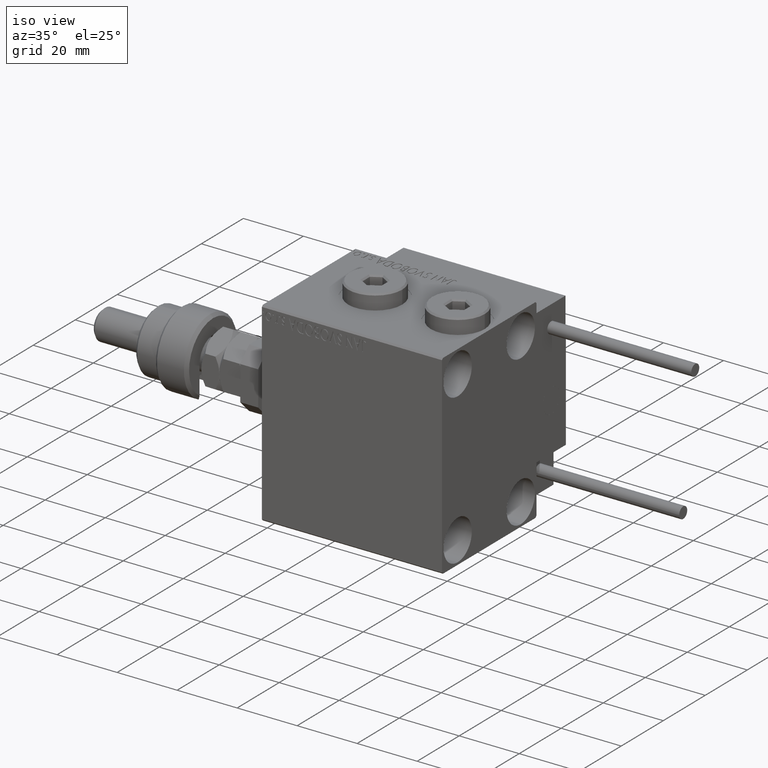
[diagram: clean part render]
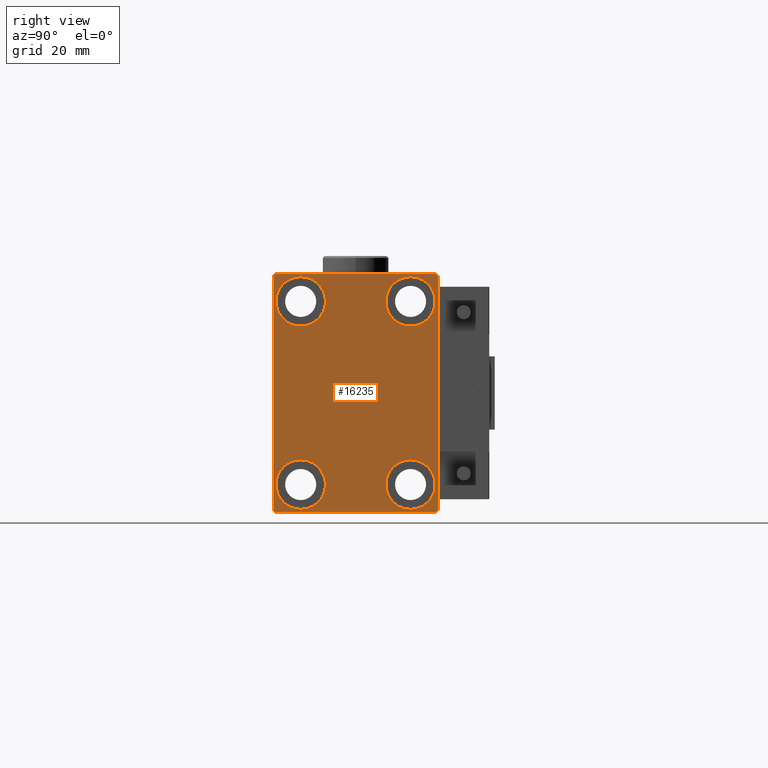
[diagram: tour spotlight — one face highlighted and labeled with its STEP entity id]
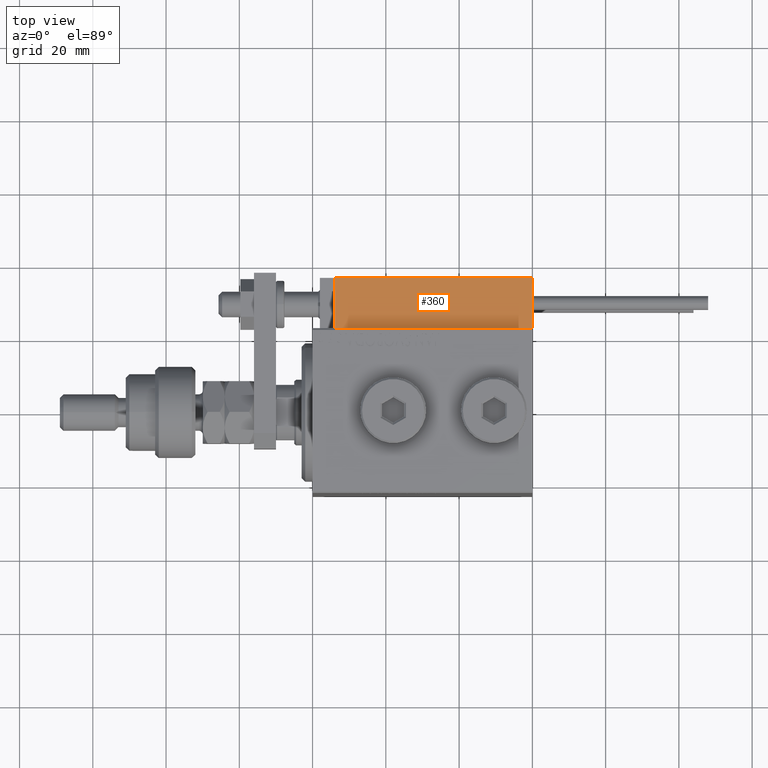
[diagram: tour spotlight — one face highlighted and labeled with its STEP entity id]
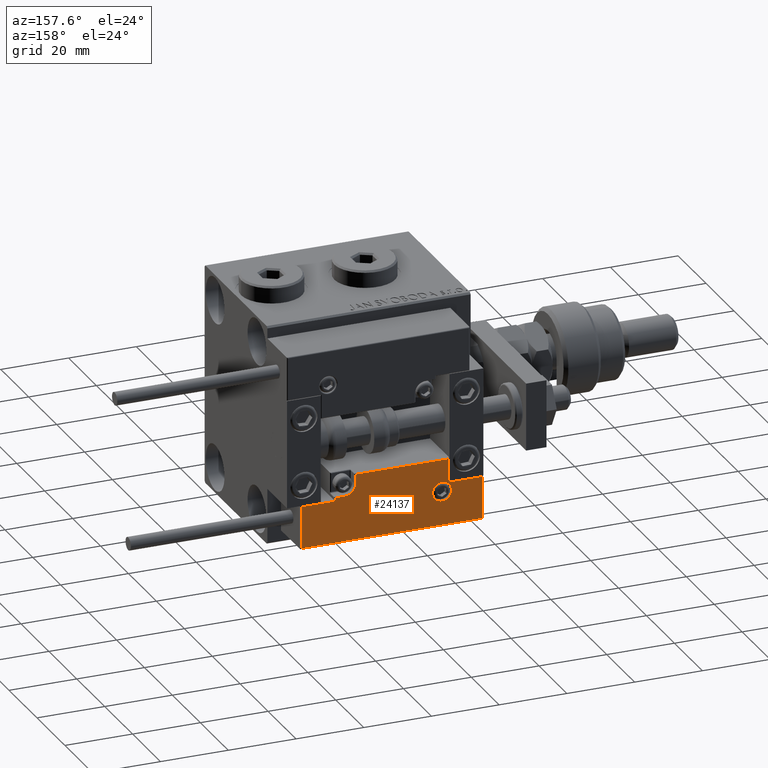
[diagram: tour spotlight — one face highlighted and labeled with its STEP entity id]
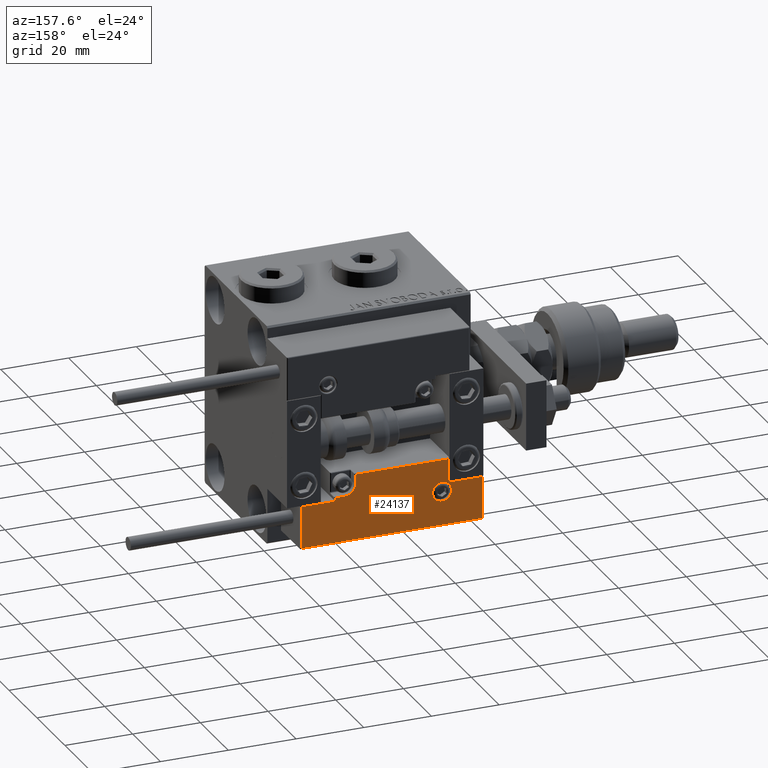
[diagram: tour spotlight — one face highlighted and labeled with its STEP entity id]
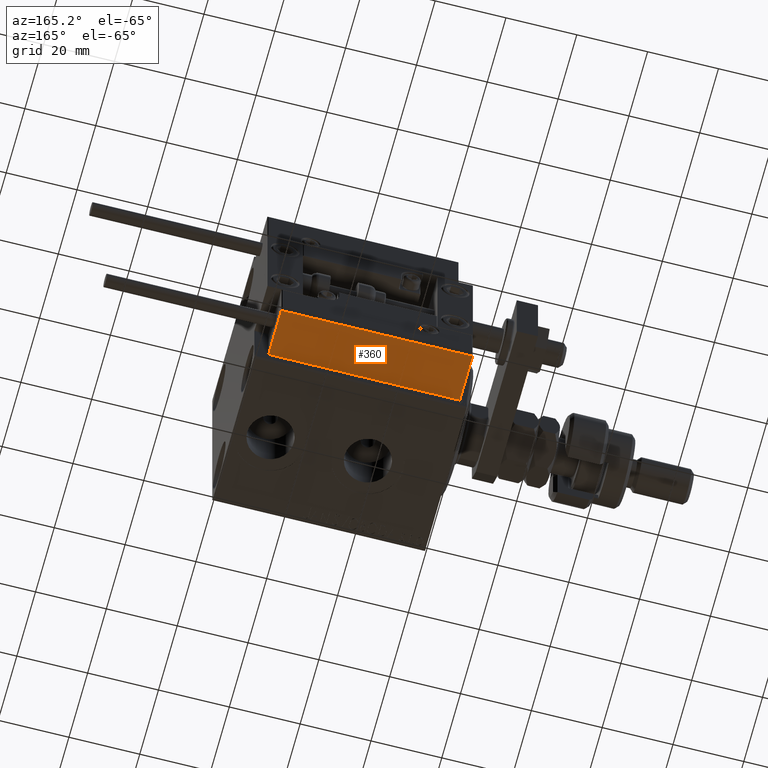
[diagram: tour spotlight — one face highlighted and labeled with its STEP entity id]
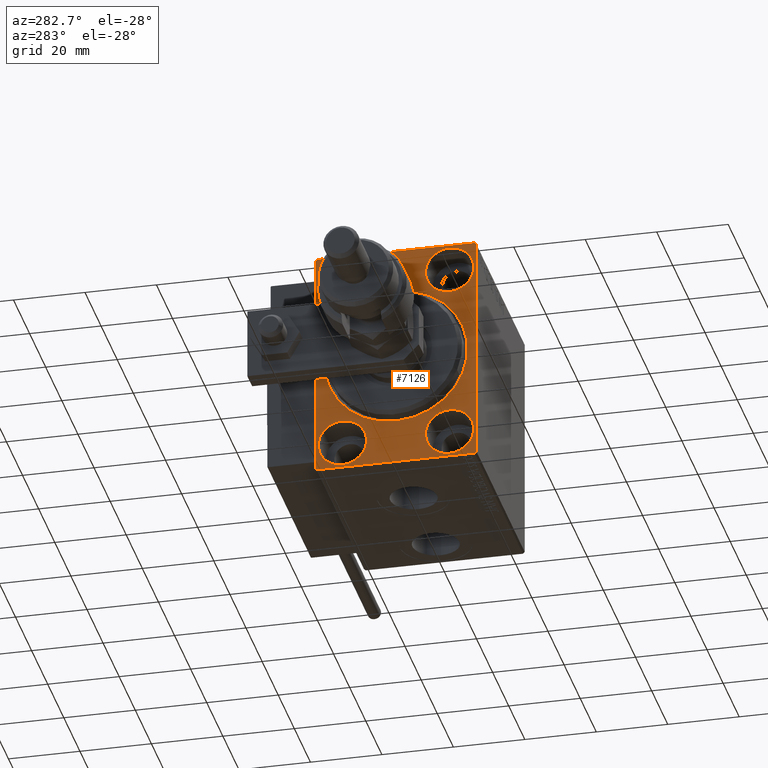
[diagram: tour spotlight — one face highlighted and labeled with its STEP entity id]
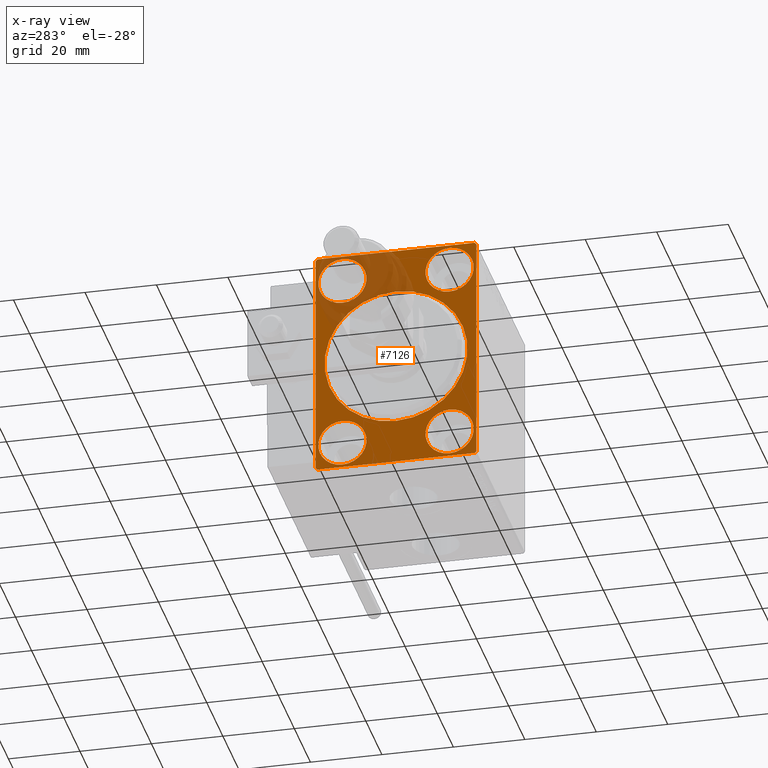
[diagram: x-ray of the same camera — body ghosted, this tour face saturated]
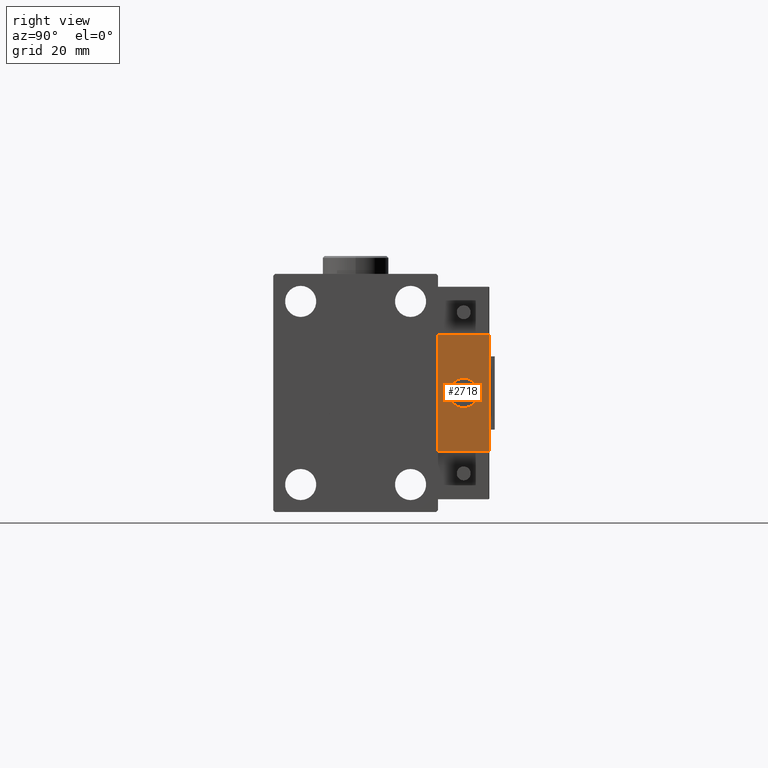
[diagram: tour spotlight — one face highlighted and labeled with its STEP entity id]
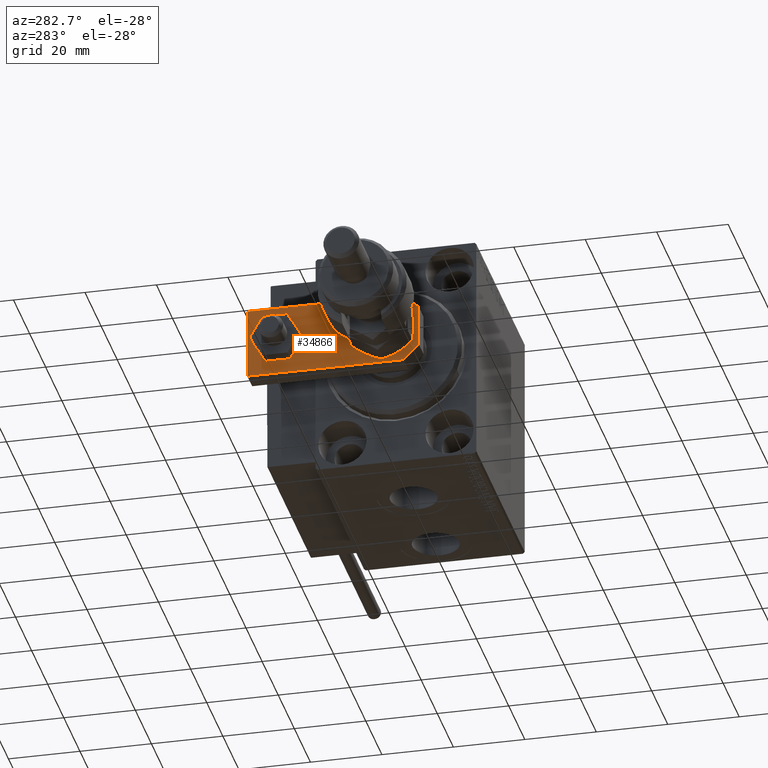
[diagram: tour spotlight — one face highlighted and labeled with its STEP entity id]
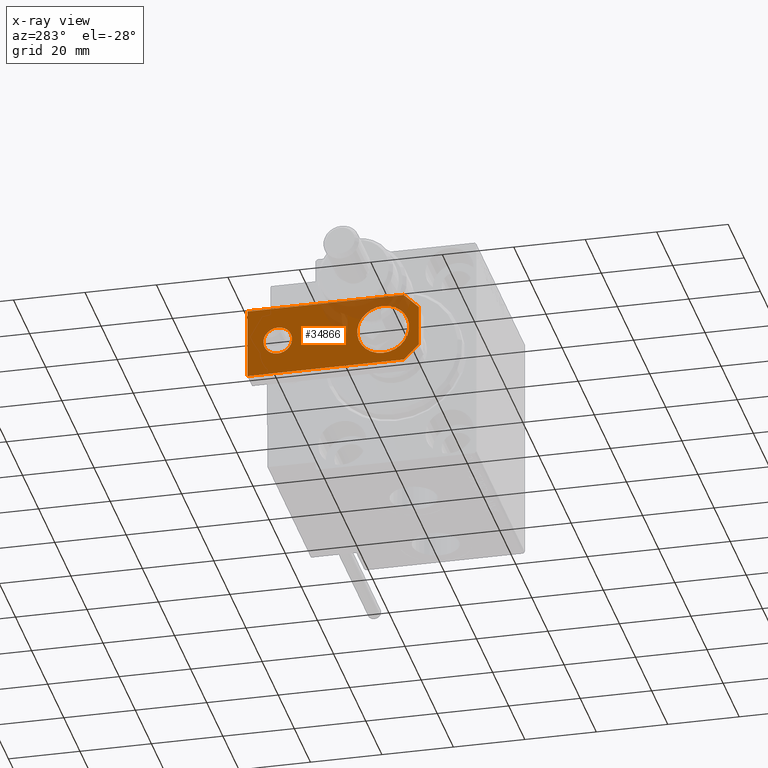
[diagram: x-ray of the same camera — body ghosted, this tour face saturated]
A machine part: a face-by-face anatomy tour. The part has 1421 B-rep faces; the first image is the clean iso view, then the 8 largest visible faces are spotlighted one at a time (largest first), each with its STEP entity span.

Face 1 — right view, entity #16235. In plain terms, the highlighted planar face has unit normal (1, 0, 0).
Definition (entity closure, byte-faithful):
#26 = DIRECTION ( 'NONE',  ( 0.000000000000000000, 0.000000000000000000, -1.000000000000000000 ) ) ;
#295 = EDGE_CURVE ( 'NONE', #29119, #45873, #20941, .T. ) ;
#684 = ORIENTED_EDGE ( 'NONE', *, *, #16793, .T. ) ;
#990 = VERTEX_POINT ( 'NONE', #53723 ) ;
#1831 = CARTESIAN_POINT ( 'NONE',  ( 60.00000000000000000, -22.50000000000000711, -32.00000000000000711 ) ) ;
#1866 = DIRECTION ( 'NONE',  ( -0.000000000000000000, 0.7071067811865376918, 0.7071067811865574537 ) ) ;
#1937 = EDGE_CURVE ( 'NONE', #3067, #21109, #43945, .T. ) ;
#2407 = CARTESIAN_POINT ( 'NONE',  ( 60.00000000000000000, -22.50000000000000711, -32.50000000000000711 ) ) ;
#2681 = CARTESIAN_POINT ( 'NONE',  ( 60.00000000000000000, -14.99999999999999645, 31.75000000000000000 ) ) ;
#3067 = VERTEX_POINT ( 'NONE', #42255 ) ;
#3173 = VERTEX_POINT ( 'NONE', #1831 ) ;
#3904 = CARTESIAN_POINT ( 'NONE',  ( 60.00000000000000000, 22.49999999999999289, 32.50000000000000000 ) ) ;
#4362 = ORIENTED_EDGE ( 'NONE', *, *, #14440, .T. ) ;
#5402 = DIRECTION ( 'NONE',  ( 0.000000000000000000, 0.000000000000000000, 1.000000000000000000 ) ) ;
#5993 = LINE ( 'NONE', #52433, #12314 ) ;
#6816 = EDGE_LOOP ( 'NONE', ( #50089, #40949, #41633, #4362, #11360, #30584, #31423, #20229 ) ) ;
#7571 = CARTESIAN_POINT ( 'NONE',  ( 60.00000000000000000, 15.00000000000000355, 31.75000000000000000 ) ) ;
#8039 = LINE ( 'NONE', #3904, #14961 ) ;
#8164 = VERTEX_POINT ( 'NONE', #38797 ) ;
#8286 = CARTESIAN_POINT ( 'NONE',  ( 60.00000000000000000, 21.99999999999999289, 32.50000000000000000 ) ) ;
#8685 = EDGE_LOOP ( 'NONE', ( #15532, #33483 ) ) ;
#8866 = EDGE_CURVE ( 'NONE', #16313, #42324, #20745, .T. ) ;
#9336 = FACE_BOUND ( 'NONE', #23962, .T. ) ;
#9538 = DIRECTION ( 'NONE',  ( -1.000000000000000000, -0.000000000000000000, -0.000000000000000000 ) ) ;
#10670 = CARTESIAN_POINT ( 'NONE',  ( 60.00000000000000000, -22.50000000000000711, 32.49999999999999289 ) ) ;
#11360 = ORIENTED_EDGE ( 'NONE', *, *, #44717, .T. ) ;
#11372 = VECTOR ( 'NONE', #35965, 1000.000000000000000 ) ;
#11888 = VERTEX_POINT ( 'NONE', #21552 ) ;
#12314 = VECTOR ( 'NONE', #1866, 999.9999999999998863 ) ;
#13186 = PLANE ( 'NONE',  #13992 ) ;
#13992 = AXIS2_PLACEMENT_3D ( 'NONE', #46481, #38468, #26 ) ;
#14440 = EDGE_CURVE ( 'NONE', #3173, #33764, #17332, .T. ) ;
#14699 = DIRECTION ( 'NONE',  ( -1.000000000000000000, -0.000000000000000000, -0.000000000000000000 ) ) ;
#14759 = CIRCLE ( 'NONE', #54293, 6.749999999999999112 ) ;
#14781 = LINE ( 'NONE', #10670, #44193 ) ;
#14961 = VECTOR ( 'NONE', #21211, 1000.000000000000000 ) ;
#15026 = ORIENTED_EDGE ( 'NONE', *, *, #1937, .T. ) ;
#15357 = LINE ( 'NONE', #19213, #11372 ) ;
#15532 = ORIENTED_EDGE ( 'NONE', *, *, #17025, .T. ) ;
#15978 = ORIENTED_EDGE ( 'NONE', *, *, #46107, .T. ) ;
#16235 = ADVANCED_FACE ( 'NONE', ( #51127, #47022, #9336, #37648, #29680 ), #13186, .T. ) ;
#16313 = VERTEX_POINT ( 'NONE', #17852 ) ;
#16543 = CIRCLE ( 'NONE', #34963, 6.749999999999999112 ) ;
#16715 = DIRECTION ( 'NONE',  ( 0.000000000000000000, 0.000000000000000000, 1.000000000000000000 ) ) ;
#16793 = EDGE_CURVE ( 'NONE', #50260, #28849, #14759, .T. ) ;
#16894 = AXIS2_PLACEMENT_3D ( 'NONE', #27363, #14699, #5402 ) ;
#16900 = EDGE_LOOP ( 'NONE', ( #684, #15978 ) ) ;
#16970 = DIRECTION ( 'NONE',  ( 0.000000000000000000, 0.000000000000000000, 1.000000000000000000 ) ) ;
#17025 = EDGE_CURVE ( 'NONE', #42324, #16313, #16543, .T. ) ;
#17047 = AXIS2_PLACEMENT_3D ( 'NONE', #28661, #19594, #49024 ) ;
#17332 = LINE ( 'NONE', #29972, #38478 ) ;
#17852 = CARTESIAN_POINT ( 'NONE',  ( 60.00000000000000000, 14.99999999999999645, -18.25000000000000355 ) ) ;
#19033 = DIRECTION ( 'NONE',  ( 0.000000000000000000, 0.000000000000000000, 1.000000000000000000 ) ) ;
#19213 = CARTESIAN_POINT ( 'NONE',  ( 60.00000000000000000, 22.50000000000000000, -32.50000000000000711 ) ) ;
#19594 = DIRECTION ( 'NONE',  ( -1.000000000000000000, -0.000000000000000000, -0.000000000000000000 ) ) ;
#20229 = ORIENTED_EDGE ( 'NONE', *, *, #24370, .T. ) ;
#20415 = CIRCLE ( 'NONE', #29215, 6.749999999999999112 ) ;
#20745 = CIRCLE ( 'NONE', #26027, 6.749999999999999112 ) ;
#20941 = CIRCLE ( 'NONE', #48190, 6.749999999999999112 ) ;
#21109 = VERTEX_POINT ( 'NONE', #2681 ) ;
#21211 = DIRECTION ( 'NONE',  ( 0.000000000000000000, -1.000000000000000000, -1.541976423090495387E-16 ) ) ;
#21397 = DIRECTION ( 'NONE',  ( 0.000000000000000000, 0.000000000000000000, 1.000000000000000000 ) ) ;
#21552 = CARTESIAN_POINT ( 'NONE',  ( 60.00000000000000000, 21.99999999999998579, -32.50000000000000711 ) ) ;
#21989 = EDGE_LOOP ( 'NONE', ( #15026, #30081 ) ) ;
#22180 = DIRECTION ( 'NONE',  ( 0.000000000000000000, 0.000000000000000000, 1.000000000000000000 ) ) ;
#23851 = DIRECTION ( 'NONE',  ( 0.000000000000000000, 1.000000000000000000, 0.000000000000000000 ) ) ;
#23962 = EDGE_LOOP ( 'NONE', ( #27906, #25077 ) ) ;
#24370 = EDGE_CURVE ( 'NONE', #8164, #39011, #52545, .T. ) ;
#25077 = ORIENTED_EDGE ( 'NONE', *, *, #25942, .T. ) ;
#25942 = EDGE_CURVE ( 'NONE', #45873, #29119, #36173, .T. ) ;
#26027 = AXIS2_PLACEMENT_3D ( 'NONE', #49998, #29087, #16715 ) ;
#26072 = DIRECTION ( 'NONE',  ( -1.000000000000000000, -0.000000000000000000, -0.000000000000000000 ) ) ;
#26624 = CARTESIAN_POINT ( 'NONE',  ( 60.00000000000000000, -27.25000000000000000, 27.25000000000000000 ) ) ;
#27363 = CARTESIAN_POINT ( 'NONE',  ( 60.00000000000000000, 15.00000000000000355, 25.00000000000000000 ) ) ;
#27906 = ORIENTED_EDGE ( 'NONE', *, *, #295, .T. ) ;
#28340 = DIRECTION ( 'NONE',  ( -0.000000000000000000, -0.7071067811865425767, 0.7071067811865525687 ) ) ;
#28661 = CARTESIAN_POINT ( 'NONE',  ( 60.00000000000000000, -14.99999999999999645, 25.00000000000000000 ) ) ;
#28849 = VERTEX_POINT ( 'NONE', #39995 ) ;
#29087 = DIRECTION ( 'NONE',  ( -1.000000000000000000, -0.000000000000000000, -0.000000000000000000 ) ) ;
#29119 = VERTEX_POINT ( 'NONE', #38840 ) ;
#29215 = AXIS2_PLACEMENT_3D ( 'NONE', #48481, #31140, #19033 ) ;
#29554 = DIRECTION ( 'NONE',  ( -1.000000000000000000, -0.000000000000000000, -0.000000000000000000 ) ) ;
#29680 = FACE_OUTER_BOUND ( 'NONE', #6816, .T. ) ;
#29972 = CARTESIAN_POINT ( 'NONE',  ( 60.00000000000000000, -27.25000000000032330, -27.24999999999957012 ) ) ;
#30081 = ORIENTED_EDGE ( 'NONE', *, *, #53337, .T. ) ;
#30584 = ORIENTED_EDGE ( 'NONE', *, *, #40403, .T. ) ;
#31140 = DIRECTION ( 'NONE',  ( -1.000000000000000000, -0.000000000000000000, -0.000000000000000000 ) ) ;
#31423 = ORIENTED_EDGE ( 'NONE', *, *, #38455, .T. ) ;
#31564 = DIRECTION ( 'NONE',  ( 0.000000000000000000, 0.000000000000000000, -1.000000000000000000 ) ) ;
#32119 = CARTESIAN_POINT ( 'NONE',  ( 60.00000000000000000, 22.50000000000000000, -31.99999999999999289 ) ) ;
#33401 = CARTESIAN_POINT ( 'NONE',  ( 60.00000000000000000, 14.99999999999999645, -25.00000000000000000 ) ) ;
#33483 = ORIENTED_EDGE ( 'NONE', *, *, #8866, .T. ) ;
#33764 = VERTEX_POINT ( 'NONE', #42670 ) ;
#33993 = DIRECTION ( 'NONE',  ( -1.000000000000000000, -0.000000000000000000, -0.000000000000000000 ) ) ;
#34316 = VECTOR ( 'NONE', #47272, 1000.000000000000114 ) ;
#34963 = AXIS2_PLACEMENT_3D ( 'NONE', #33401, #29554, #50196 ) ;
#35751 = CARTESIAN_POINT ( 'NONE',  ( 60.00000000000000000, 27.25000000000014921, 27.24999999999976907 ) ) ;
#35965 = DIRECTION ( 'NONE',  ( 0.000000000000000000, -1.067522139062650425E-16, 1.000000000000000000 ) ) ;
#36173 = CIRCLE ( 'NONE', #16894, 6.749999999999999112 ) ;
#36445 = CARTESIAN_POINT ( 'NONE',  ( 60.00000000000000000, 14.99999999999999645, -31.75000000000000000 ) ) ;
#36469 = LINE ( 'NONE', #2407, #40590 ) ;
#37648 = FACE_BOUND ( 'NONE', #16900, .T. ) ;
#38455 = EDGE_CURVE ( 'NONE', #41927, #8164, #15357, .T. ) ;
#38468 = DIRECTION ( 'NONE',  ( 1.000000000000000000, 0.000000000000000000, 0.000000000000000000 ) ) ;
#38478 = VECTOR ( 'NONE', #46766, 1000.000000000000000 ) ;
#38797 = CARTESIAN_POINT ( 'NONE',  ( 60.00000000000000000, 22.49999999999999289, 31.99999999999999289 ) ) ;
#38840 = CARTESIAN_POINT ( 'NONE',  ( 60.00000000000000000, 15.00000000000000355, 18.25000000000000355 ) ) ;
#39011 = VERTEX_POINT ( 'NONE', #8286 ) ;
#39524 = LINE ( 'NONE', #26624, #34316 ) ;
#39995 = CARTESIAN_POINT ( 'NONE',  ( 60.00000000000000000, -15.00000000000000355, -18.25000000000000355 ) ) ;
#40403 = EDGE_CURVE ( 'NONE', #11888, #41927, #5993, .T. ) ;
#40590 = VECTOR ( 'NONE', #23851, 1000.000000000000000 ) ;
#40742 = CIRCLE ( 'NONE', #17047, 6.749999999999999112 ) ;
#40949 = ORIENTED_EDGE ( 'NONE', *, *, #41533, .T. ) ;
#41087 = EDGE_CURVE ( 'NONE', #39011, #53689, #8039, .T. ) ;
#41166 = CARTESIAN_POINT ( 'NONE',  ( 60.00000000000000000, -21.99999999999999289, 32.49999999999999289 ) ) ;
#41533 = EDGE_CURVE ( 'NONE', #53689, #990, #39524, .T. ) ;
#41633 = ORIENTED_EDGE ( 'NONE', *, *, #50386, .T. ) ;
#41927 = VERTEX_POINT ( 'NONE', #32119 ) ;
#42249 = CARTESIAN_POINT ( 'NONE',  ( 60.00000000000000000, -14.99999999999999645, 25.00000000000000000 ) ) ;
#42255 = CARTESIAN_POINT ( 'NONE',  ( 60.00000000000000000, -14.99999999999999645, 18.25000000000000355 ) ) ;
#42324 = VERTEX_POINT ( 'NONE', #36445 ) ;
#42670 = CARTESIAN_POINT ( 'NONE',  ( 60.00000000000000000, -22.00000000000002132, -32.50000000000000711 ) ) ;
#43137 = VECTOR ( 'NONE', #28340, 999.9999999999998863 ) ;
#43945 = CIRCLE ( 'NONE', #47515, 6.749999999999999112 ) ;
#44193 = VECTOR ( 'NONE', #31564, 1000.000000000000000 ) ;
#44717 = EDGE_CURVE ( 'NONE', #33764, #11888, #36469, .T. ) ;
#45873 = VERTEX_POINT ( 'NONE', #7571 ) ;
#46107 = EDGE_CURVE ( 'NONE', #28849, #50260, #20415, .T. ) ;
#46481 = CARTESIAN_POINT ( 'NONE',  ( 60.00000000000000000, 0.000000000000000000, 0.000000000000000000 ) ) ;
#46708 = CARTESIAN_POINT ( 'NONE',  ( 60.00000000000000000, 15.00000000000000355, 25.00000000000000000 ) ) ;
#46766 = DIRECTION ( 'NONE',  ( -0.000000000000000000, 0.7071067811865378028, -0.7071067811865573427 ) ) ;
#47022 = FACE_BOUND ( 'NONE', #21989, .T. ) ;
#47222 = CARTESIAN_POINT ( 'NONE',  ( 60.00000000000000000, -15.00000000000000355, -25.00000000000000000 ) ) ;
#47272 = DIRECTION ( 'NONE',  ( 0.000000000000000000, -0.7071067811865474617, -0.7071067811865474617 ) ) ;
#47515 = AXIS2_PLACEMENT_3D ( 'NONE', #42249, #33993, #16970 ) ;
#47552 = CARTESIAN_POINT ( 'NONE',  ( 60.00000000000000000, -15.00000000000000355, -31.75000000000000000 ) ) ;
#48190 = AXIS2_PLACEMENT_3D ( 'NONE', #46708, #26072, #21397 ) ;
#48481 = CARTESIAN_POINT ( 'NONE',  ( 60.00000000000000000, -15.00000000000000355, -25.00000000000000000 ) ) ;
#49024 = DIRECTION ( 'NONE',  ( 0.000000000000000000, 0.000000000000000000, 1.000000000000000000 ) ) ;
#49998 = CARTESIAN_POINT ( 'NONE',  ( 60.00000000000000000, 14.99999999999999645, -25.00000000000000000 ) ) ;
#50089 = ORIENTED_EDGE ( 'NONE', *, *, #41087, .T. ) ;
#50196 = DIRECTION ( 'NONE',  ( 0.000000000000000000, 0.000000000000000000, 1.000000000000000000 ) ) ;
#50260 = VERTEX_POINT ( 'NONE', #47552 ) ;
#50386 = EDGE_CURVE ( 'NONE', #990, #3173, #14781, .T. ) ;
#51127 = FACE_BOUND ( 'NONE', #8685, .T. ) ;
#52433 = CARTESIAN_POINT ( 'NONE',  ( 60.00000000000000000, 27.25000000000030553, -27.24999999999954881 ) ) ;
#52545 = LINE ( 'NONE', #35751, #43137 ) ;
#53337 = EDGE_CURVE ( 'NONE', #21109, #3067, #40742, .T. ) ;
#53689 = VERTEX_POINT ( 'NONE', #41166 ) ;
#53723 = CARTESIAN_POINT ( 'NONE',  ( 60.00000000000000000, -22.50000000000000711, 31.99999999999999289 ) ) ;
#54293 = AXIS2_PLACEMENT_3D ( 'NONE', #47222, #9538, #22180 ) ;

Face 2 — top view, entity #360. In plain terms, the highlighted planar face has unit normal (-0, -0, -1).
Definition (entity closure, byte-faithful):
#360 = ADVANCED_FACE ( 'NONE', ( #42003 ), #5172, .F. ) ;
#2602 = DIRECTION ( 'NONE',  ( 1.000000000000000000, -6.424901762877063495E-17, -0.000000000000000000 ) ) ;
#3023 = EDGE_CURVE ( 'NONE', #16167, #31279, #26047, .T. ) ;
#3566 = EDGE_LOOP ( 'NONE', ( #4620, #48056, #11229, #9707 ) ) ;
#4094 = DIRECTION ( 'NONE',  ( -6.424901762877063495E-17, -1.000000000000000000, 0.000000000000000000 ) ) ;
#4620 = ORIENTED_EDGE ( 'NONE', *, *, #13464, .F. ) ;
#5172 = PLANE ( 'NONE',  #29728 ) ;
#6096 = CARTESIAN_POINT ( 'NONE',  ( -26.99999999999993605, 20.00000000000002132, 14.00000000000000000 ) ) ;
#6355 = LINE ( 'NONE', #6096, #17420 ) ;
#7628 = VECTOR ( 'NONE', #50165, 1000.000000000000000 ) ;
#8764 = CARTESIAN_POINT ( 'NONE',  ( 27.00000000000006395, 20.00000000000001776, 14.00000000000000000 ) ) ;
#9707 = ORIENTED_EDGE ( 'NONE', *, *, #3023, .T. ) ;
#11015 = CARTESIAN_POINT ( 'NONE',  ( 27.00000000000006395, 20.00000000000001776, 0.000000000000000000 ) ) ;
#11229 = ORIENTED_EDGE ( 'NONE', *, *, #28292, .T. ) ;
#13464 = EDGE_CURVE ( 'NONE', #21680, #31279, #6355, .T. ) ;
#16167 = VERTEX_POINT ( 'NONE', #11015 ) ;
#16604 = LINE ( 'NONE', #33371, #7628 ) ;
#17420 = VECTOR ( 'NONE', #35735, 1000.000000000000000 ) ;
#21106 = DIRECTION ( 'NONE',  ( -1.000000000000000000, 6.424901762877062263E-17, 0.000000000000000000 ) ) ;
#21680 = VERTEX_POINT ( 'NONE', #48479 ) ;
#21944 = DIRECTION ( 'NONE',  ( 1.000000000000000000, -6.424901762877063495E-17, 0.000000000000000000 ) ) ;
#23541 = CARTESIAN_POINT ( 'NONE',  ( -26.99999999999993605, 20.00000000000002132, 0.000000000000000000 ) ) ;
#26047 = LINE ( 'NONE', #29893, #35525 ) ;
#26880 = VERTEX_POINT ( 'NONE', #41221 ) ;
#28292 = EDGE_CURVE ( 'NONE', #26880, #16167, #16604, .T. ) ;
#29728 = AXIS2_PLACEMENT_3D ( 'NONE', #8764, #4094, #21944 ) ;
#29893 = CARTESIAN_POINT ( 'NONE',  ( 27.00000000000006395, 20.00000000000001776, 0.000000000000000000 ) ) ;
#31279 = VERTEX_POINT ( 'NONE', #23541 ) ;
#33371 = CARTESIAN_POINT ( 'NONE',  ( 27.00000000000006395, 20.00000000000001776, 14.00000000000000000 ) ) ;
#33512 = EDGE_CURVE ( 'NONE', #21680, #26880, #43571, .T. ) ;
#35525 = VECTOR ( 'NONE', #21106, 1000.000000000000000 ) ;
#35735 = DIRECTION ( 'NONE',  ( -0.000000000000000000, -0.000000000000000000, -1.000000000000000000 ) ) ;
#37616 = VECTOR ( 'NONE', #2602, 1000.000000000000000 ) ;
#41221 = CARTESIAN_POINT ( 'NONE',  ( 27.00000000000006395, 20.00000000000001776, 13.70000000000000107 ) ) ;
#42003 = FACE_OUTER_BOUND ( 'NONE', #3566, .T. ) ;
#43571 = LINE ( 'NONE', #48261, #37616 ) ;
#48056 = ORIENTED_EDGE ( 'NONE', *, *, #33512, .T. ) ;
#48261 = CARTESIAN_POINT ( 'NONE',  ( 27.00000000000006395, 20.00000000000001776, 13.70000000000000107 ) ) ;
#48479 = CARTESIAN_POINT ( 'NONE',  ( -26.99999999999993605, 20.00000000000002132, 13.70000000000000107 ) ) ;
#50165 = DIRECTION ( 'NONE',  ( -0.000000000000000000, -0.000000000000000000, -1.000000000000000000 ) ) ;

Face 3 — auxiliary view, entity #24137. In plain terms, the highlighted planar face has unit normal (0, 1, -0).
Definition (entity closure, byte-faithful):
#729 = LINE ( 'NONE', #8702, #33527 ) ;
#790 = ORIENTED_EDGE ( 'NONE', *, *, #2112, .T. ) ;
#1526 = VECTOR ( 'NONE', #17889, 1000.000000000000000 ) ;
#1564 = CARTESIAN_POINT ( 'NONE',  ( -26.69999999999994600, 7.300000000000005151, 14.00000000000000000 ) ) ;
#1640 = VERTEX_POINT ( 'NONE', #43124 ) ;
#1679 = CIRCLE ( 'NONE', #8717, 3.299999999999997158 ) ;
#1802 = EDGE_CURVE ( 'NONE', #2119, #19817, #14250, .T. ) ;
#2112 = EDGE_CURVE ( 'NONE', #19817, #8191, #16356, .T. ) ;
#2119 = VERTEX_POINT ( 'NONE', #32296 ) ;
#3286 = CARTESIAN_POINT ( 'NONE',  ( -17.59999999999994813, 9.800000000000004263, 14.00000000000000000 ) ) ;
#3514 = LINE ( 'NONE', #20269, #49515 ) ;
#3712 = EDGE_CURVE ( 'NONE', #33407, #2119, #53353, .T. ) ;
#3784 = CARTESIAN_POINT ( 'NONE',  ( 16.69999999999999929, 7.300000000000009592, 14.00000000000000000 ) ) ;
#3830 = LINE ( 'NONE', #54378, #5924 ) ;
#4257 = ORIENTED_EDGE ( 'NONE', *, *, #23079, .T. ) ;
#4655 = CIRCLE ( 'NONE', #15194, 2.800000000000000266 ) ;
#5549 = CARTESIAN_POINT ( 'NONE',  ( 10.69999999999999929, 3.000000000000003109, 14.00000000000000000 ) ) ;
#5924 = VECTOR ( 'NONE', #53589, 1000.000000000000000 ) ;
#6757 = EDGE_CURVE ( 'NONE', #7112, #23624, #26869, .T. ) ;
#6829 = CARTESIAN_POINT ( 'NONE',  ( 11.00000000000000000, 0.3000000000000032085, 14.00000000000000000 ) ) ;
#7112 = VERTEX_POINT ( 'NONE', #17409 ) ;
#8191 = VERTEX_POINT ( 'NONE', #5549 ) ;
#8358 = DIRECTION ( 'NONE',  ( 1.000000000000000000, 0.000000000000000000, 0.000000000000000000 ) ) ;
#8570 = LINE ( 'NONE', #26413, #1526 ) ;
#8611 = CARTESIAN_POINT ( 'NONE',  ( 0.000000000000000000, 0.000000000000000000, 14.00000000000000000 ) ) ;
#8702 = CARTESIAN_POINT ( 'NONE',  ( 16.69999999999999929, 7.000000000000009770, 14.00000000000000000 ) ) ;
#8717 = AXIS2_PLACEMENT_3D ( 'NONE', #12206, #28970, #8358 ) ;
#8933 = CARTESIAN_POINT ( 'NONE',  ( -14.79999999999994920, 9.800000000000004263, 14.00000000000000000 ) ) ;
#9239 = DIRECTION ( 'NONE',  ( 9.912705577010318647E-16, 1.000000000000000000, 0.000000000000000000 ) ) ;
#9938 = ORIENTED_EDGE ( 'NONE', *, *, #30620, .T. ) ;
#10030 = CARTESIAN_POINT ( 'NONE',  ( 16.69999999999999929, 6.300000000000003375, 14.00000000000000000 ) ) ;
#11060 = EDGE_CURVE ( 'NONE', #48906, #1640, #8570, .T. ) ;
#11266 = EDGE_CURVE ( 'NONE', #23624, #33407, #3830, .T. ) ;
#11496 = VECTOR ( 'NONE', #35091, 1000.000000000000000 ) ;
#12188 = FACE_BOUND ( 'NONE', #23288, .T. ) ;
#12206 = CARTESIAN_POINT ( 'NONE',  ( 13.99999999999999822, 3.000000000000002665, 14.00000000000000000 ) ) ;
#12785 = VERTEX_POINT ( 'NONE', #21824 ) ;
#12992 = DIRECTION ( 'NONE',  ( -0.000000000000000000, 0.000000000000000000, 1.000000000000000000 ) ) ;
#13689 = CARTESIAN_POINT ( 'NONE',  ( -26.69999999999994600, 7.000000000000005329, 14.00000000000000000 ) ) ;
#13942 = CARTESIAN_POINT ( 'NONE',  ( 17.00000000000000000, 6.300000000000003375, 14.00000000000000000 ) ) ;
#14169 = CARTESIAN_POINT ( 'NONE',  ( 13.99999999999999822, 6.300000000000001599, 14.00000000000000000 ) ) ;
#14250 = LINE ( 'NONE', #6829, #45735 ) ;
#14501 = VECTOR ( 'NONE', #47520, 1000.000000000000000 ) ;
#14608 = ORIENTED_EDGE ( 'NONE', *, *, #46603, .T. ) ;
#14990 = AXIS2_PLACEMENT_3D ( 'NONE', #8933, #21306, #29278 ) ;
#15194 = AXIS2_PLACEMENT_3D ( 'NONE', #47275, #30744, #52722 ) ;
#15210 = EDGE_CURVE ( 'NONE', #8191, #21324, #1679, .T. ) ;
#16356 = LINE ( 'NONE', #20474, #21130 ) ;
#17030 = VECTOR ( 'NONE', #28613, 1000.000000000000000 ) ;
#17409 = CARTESIAN_POINT ( 'NONE',  ( -26.69999999999993534, 19.70000000000002061, 14.00000000000000000 ) ) ;
#17889 = DIRECTION ( 'NONE',  ( 1.000000000000000000, -1.734723475976796001E-16, 0.000000000000000000 ) ) ;
#19543 = DIRECTION ( 'NONE',  ( -1.000000000000000000, 6.424901762877063495E-17, -0.000000000000000000 ) ) ;
#19775 = CARTESIAN_POINT ( 'NONE',  ( 10.69999999999999929, 0.3000000000000032085, 14.00000000000000000 ) ) ;
#19817 = VERTEX_POINT ( 'NONE', #19775 ) ;
#20207 = DIRECTION ( 'NONE',  ( -0.000000000000000000, 1.000000000000000000, -0.000000000000000000 ) ) ;
#20269 = CARTESIAN_POINT ( 'NONE',  ( 26.70000000000006324, 20.00000000000001776, 14.00000000000000000 ) ) ;
#20474 = CARTESIAN_POINT ( 'NONE',  ( 10.69999999999999929, 3.000000000000003109, 14.00000000000000000 ) ) ;
#21130 = VECTOR ( 'NONE', #20207, 1000.000000000000000 ) ;
#21188 = CARTESIAN_POINT ( 'NONE',  ( 26.70000000000006324, 19.70000000000001705, 14.00000000000000000 ) ) ;
#21306 = DIRECTION ( 'NONE',  ( 0.000000000000000000, -0.000000000000000000, -1.000000000000000000 ) ) ;
#21324 = VERTEX_POINT ( 'NONE', #14169 ) ;
#21824 = CARTESIAN_POINT ( 'NONE',  ( -11.99999999999994849, 9.800000000000004263, 14.00000000000000000 ) ) ;
#22053 = EDGE_CURVE ( 'NONE', #21324, #32577, #51607, .T. ) ;
#22856 = LINE ( 'NONE', #40699, #50716 ) ;
#23079 = EDGE_CURVE ( 'NONE', #12785, #28415, #38716, .T. ) ;
#23288 = EDGE_LOOP ( 'NONE', ( #4257, #14608 ) ) ;
#23624 = VERTEX_POINT ( 'NONE', #1564 ) ;
#23837 = ORIENTED_EDGE ( 'NONE', *, *, #1802, .T. ) ;
#24137 = ADVANCED_FACE ( 'NONE', ( #12188, #46278 ), #45737, .T. ) ;
#25582 = EDGE_LOOP ( 'NONE', ( #51200, #23837, #790, #35531, #49043, #47329, #30314, #30357, #9938, #30026, #43275 ) ) ;
#26413 = CARTESIAN_POINT ( 'NONE',  ( 27.00000000000006395, 7.300000000000007816, 14.00000000000000000 ) ) ;
#26869 = LINE ( 'NONE', #13689, #14501 ) ;
#28415 = VERTEX_POINT ( 'NONE', #3286 ) ;
#28613 = DIRECTION ( 'NONE',  ( 0.000000000000000000, -1.000000000000000000, 0.000000000000000000 ) ) ;
#28970 = DIRECTION ( 'NONE',  ( 0.000000000000000000, -0.000000000000000000, -1.000000000000000000 ) ) ;
#29278 = DIRECTION ( 'NONE',  ( 1.000000000000000000, 0.000000000000000000, 0.000000000000000000 ) ) ;
#30026 = ORIENTED_EDGE ( 'NONE', *, *, #6757, .T. ) ;
#30314 = ORIENTED_EDGE ( 'NONE', *, *, #11060, .T. ) ;
#30357 = ORIENTED_EDGE ( 'NONE', *, *, #48864, .T. ) ;
#30620 = EDGE_CURVE ( 'NONE', #31794, #7112, #22856, .T. ) ;
#30744 = DIRECTION ( 'NONE',  ( 0.000000000000000000, -0.000000000000000000, -1.000000000000000000 ) ) ;
#31794 = VERTEX_POINT ( 'NONE', #21188 ) ;
#32296 = CARTESIAN_POINT ( 'NONE',  ( -16.69999999999999218, 0.3000000000000032085, 14.00000000000000000 ) ) ;
#32577 = VERTEX_POINT ( 'NONE', #10030 ) ;
#33407 = VERTEX_POINT ( 'NONE', #50768 ) ;
#33527 = VECTOR ( 'NONE', #9239, 1000.000000000000000 ) ;
#35091 = DIRECTION ( 'NONE',  ( 1.000000000000000000, 5.782411586589357639E-16, -0.000000000000000000 ) ) ;
#35531 = ORIENTED_EDGE ( 'NONE', *, *, #15210, .T. ) ;
#38716 = CIRCLE ( 'NONE', #14990, 2.800000000000000266 ) ;
#40346 = DIRECTION ( 'NONE',  ( 0.000000000000000000, 1.000000000000000000, -0.000000000000000000 ) ) ;
#40699 = CARTESIAN_POINT ( 'NONE',  ( -26.99999999999993605, 19.70000000000002061, 14.00000000000000000 ) ) ;
#43124 = CARTESIAN_POINT ( 'NONE',  ( 26.70000000000006324, 7.300000000000007816, 14.00000000000000000 ) ) ;
#43275 = ORIENTED_EDGE ( 'NONE', *, *, #11266, .T. ) ;
#43585 = EDGE_CURVE ( 'NONE', #32577, #48906, #729, .T. ) ;
#45380 = CARTESIAN_POINT ( 'NONE',  ( -16.69999999999999218, 3.252606517456513302E-15, 14.00000000000000000 ) ) ;
#45735 = VECTOR ( 'NONE', #52184, 1000.000000000000000 ) ;
#45737 = PLANE ( 'NONE',  #46710 ) ;
#46278 = FACE_OUTER_BOUND ( 'NONE', #25582, .T. ) ;
#46603 = EDGE_CURVE ( 'NONE', #28415, #12785, #4655, .T. ) ;
#46710 = AXIS2_PLACEMENT_3D ( 'NONE', #8611, #12992, #54246 ) ;
#47275 = CARTESIAN_POINT ( 'NONE',  ( -14.79999999999994920, 9.800000000000004263, 14.00000000000000000 ) ) ;
#47329 = ORIENTED_EDGE ( 'NONE', *, *, #43585, .T. ) ;
#47520 = DIRECTION ( 'NONE',  ( -8.006416042969869188E-16, -1.000000000000000000, 0.000000000000000000 ) ) ;
#48864 = EDGE_CURVE ( 'NONE', #1640, #31794, #3514, .T. ) ;
#48906 = VERTEX_POINT ( 'NONE', #3784 ) ;
#49043 = ORIENTED_EDGE ( 'NONE', *, *, #22053, .T. ) ;
#49515 = VECTOR ( 'NONE', #40346, 1000.000000000000000 ) ;
#50716 = VECTOR ( 'NONE', #19543, 1000.000000000000000 ) ;
#50768 = CARTESIAN_POINT ( 'NONE',  ( -16.69999999999999218, 7.300000000000003375, 14.00000000000000000 ) ) ;
#51200 = ORIENTED_EDGE ( 'NONE', *, *, #3712, .T. ) ;
#51607 = LINE ( 'NONE', #13942, #11496 ) ;
#52184 = DIRECTION ( 'NONE',  ( 1.000000000000000000, -0.000000000000000000, 0.000000000000000000 ) ) ;
#52722 = DIRECTION ( 'NONE',  ( 1.000000000000000000, 0.000000000000000000, 0.000000000000000000 ) ) ;
#53353 = LINE ( 'NONE', #45380, #17030 ) ;
#53589 = DIRECTION ( 'NONE',  ( 1.000000000000000000, -1.734723475976815230E-16, 0.000000000000000000 ) ) ;
#54246 = DIRECTION ( 'NONE',  ( 1.000000000000000000, 0.000000000000000000, 0.000000000000000000 ) ) ;
#54378 = CARTESIAN_POINT ( 'NONE',  ( -16.99999999999999289, 7.300000000000003375, 14.00000000000000000 ) ) ;

Face 4 — auxiliary view, entity #24137. In plain terms, the highlighted planar face has unit normal (-0, 1, -0).
Definition (entity closure, byte-faithful):
#729 = LINE ( 'NONE', #8702, #33527 ) ;
#790 = ORIENTED_EDGE ( 'NONE', *, *, #2112, .T. ) ;
#1526 = VECTOR ( 'NONE', #17889, 1000.000000000000000 ) ;
#1564 = CARTESIAN_POINT ( 'NONE',  ( -26.69999999999994600, 7.300000000000005151, 14.00000000000000000 ) ) ;
#1640 = VERTEX_POINT ( 'NONE', #43124 ) ;
#1679 = CIRCLE ( 'NONE', #8717, 3.299999999999997158 ) ;
#1802 = EDGE_CURVE ( 'NONE', #2119, #19817, #14250, .T. ) ;
#2112 = EDGE_CURVE ( 'NONE', #19817, #8191, #16356, .T. ) ;
#2119 = VERTEX_POINT ( 'NONE', #32296 ) ;
#3286 = CARTESIAN_POINT ( 'NONE',  ( -17.59999999999994813, 9.800000000000004263, 14.00000000000000000 ) ) ;
#3514 = LINE ( 'NONE', #20269, #49515 ) ;
#3712 = EDGE_CURVE ( 'NONE', #33407, #2119, #53353, .T. ) ;
#3784 = CARTESIAN_POINT ( 'NONE',  ( 16.69999999999999929, 7.300000000000009592, 14.00000000000000000 ) ) ;
#3830 = LINE ( 'NONE', #54378, #5924 ) ;
#4257 = ORIENTED_EDGE ( 'NONE', *, *, #23079, .T. ) ;
#4655 = CIRCLE ( 'NONE', #15194, 2.800000000000000266 ) ;
#5549 = CARTESIAN_POINT ( 'NONE',  ( 10.69999999999999929, 3.000000000000003109, 14.00000000000000000 ) ) ;
#5924 = VECTOR ( 'NONE', #53589, 1000.000000000000000 ) ;
#6757 = EDGE_CURVE ( 'NONE', #7112, #23624, #26869, .T. ) ;
#6829 = CARTESIAN_POINT ( 'NONE',  ( 11.00000000000000000, 0.3000000000000032085, 14.00000000000000000 ) ) ;
#7112 = VERTEX_POINT ( 'NONE', #17409 ) ;
#8191 = VERTEX_POINT ( 'NONE', #5549 ) ;
#8358 = DIRECTION ( 'NONE',  ( 1.000000000000000000, 0.000000000000000000, 0.000000000000000000 ) ) ;
#8570 = LINE ( 'NONE', #26413, #1526 ) ;
#8611 = CARTESIAN_POINT ( 'NONE',  ( 0.000000000000000000, 0.000000000000000000, 14.00000000000000000 ) ) ;
#8702 = CARTESIAN_POINT ( 'NONE',  ( 16.69999999999999929, 7.000000000000009770, 14.00000000000000000 ) ) ;
#8717 = AXIS2_PLACEMENT_3D ( 'NONE', #12206, #28970, #8358 ) ;
#8933 = CARTESIAN_POINT ( 'NONE',  ( -14.79999999999994920, 9.800000000000004263, 14.00000000000000000 ) ) ;
#9239 = DIRECTION ( 'NONE',  ( 9.912705577010318647E-16, 1.000000000000000000, 0.000000000000000000 ) ) ;
#9938 = ORIENTED_EDGE ( 'NONE', *, *, #30620, .T. ) ;
#10030 = CARTESIAN_POINT ( 'NONE',  ( 16.69999999999999929, 6.300000000000003375, 14.00000000000000000 ) ) ;
#11060 = EDGE_CURVE ( 'NONE', #48906, #1640, #8570, .T. ) ;
#11266 = EDGE_CURVE ( 'NONE', #23624, #33407, #3830, .T. ) ;
#11496 = VECTOR ( 'NONE', #35091, 1000.000000000000000 ) ;
#12188 = FACE_BOUND ( 'NONE', #23288, .T. ) ;
#12206 = CARTESIAN_POINT ( 'NONE',  ( 13.99999999999999822, 3.000000000000002665, 14.00000000000000000 ) ) ;
#12785 = VERTEX_POINT ( 'NONE', #21824 ) ;
#12992 = DIRECTION ( 'NONE',  ( -0.000000000000000000, 0.000000000000000000, 1.000000000000000000 ) ) ;
#13689 = CARTESIAN_POINT ( 'NONE',  ( -26.69999999999994600, 7.000000000000005329, 14.00000000000000000 ) ) ;
#13942 = CARTESIAN_POINT ( 'NONE',  ( 17.00000000000000000, 6.300000000000003375, 14.00000000000000000 ) ) ;
#14169 = CARTESIAN_POINT ( 'NONE',  ( 13.99999999999999822, 6.300000000000001599, 14.00000000000000000 ) ) ;
#14250 = LINE ( 'NONE', #6829, #45735 ) ;
#14501 = VECTOR ( 'NONE', #47520, 1000.000000000000000 ) ;
#14608 = ORIENTED_EDGE ( 'NONE', *, *, #46603, .T. ) ;
#14990 = AXIS2_PLACEMENT_3D ( 'NONE', #8933, #21306, #29278 ) ;
#15194 = AXIS2_PLACEMENT_3D ( 'NONE', #47275, #30744, #52722 ) ;
#15210 = EDGE_CURVE ( 'NONE', #8191, #21324, #1679, .T. ) ;
#16356 = LINE ( 'NONE', #20474, #21130 ) ;
#17030 = VECTOR ( 'NONE', #28613, 1000.000000000000000 ) ;
#17409 = CARTESIAN_POINT ( 'NONE',  ( -26.69999999999993534, 19.70000000000002061, 14.00000000000000000 ) ) ;
#17889 = DIRECTION ( 'NONE',  ( 1.000000000000000000, -1.734723475976796001E-16, 0.000000000000000000 ) ) ;
#19543 = DIRECTION ( 'NONE',  ( -1.000000000000000000, 6.424901762877063495E-17, -0.000000000000000000 ) ) ;
#19775 = CARTESIAN_POINT ( 'NONE',  ( 10.69999999999999929, 0.3000000000000032085, 14.00000000000000000 ) ) ;
#19817 = VERTEX_POINT ( 'NONE', #19775 ) ;
#20207 = DIRECTION ( 'NONE',  ( -0.000000000000000000, 1.000000000000000000, -0.000000000000000000 ) ) ;
#20269 = CARTESIAN_POINT ( 'NONE',  ( 26.70000000000006324, 20.00000000000001776, 14.00000000000000000 ) ) ;
#20474 = CARTESIAN_POINT ( 'NONE',  ( 10.69999999999999929, 3.000000000000003109, 14.00000000000000000 ) ) ;
#21130 = VECTOR ( 'NONE', #20207, 1000.000000000000000 ) ;
#21188 = CARTESIAN_POINT ( 'NONE',  ( 26.70000000000006324, 19.70000000000001705, 14.00000000000000000 ) ) ;
#21306 = DIRECTION ( 'NONE',  ( 0.000000000000000000, -0.000000000000000000, -1.000000000000000000 ) ) ;
#21324 = VERTEX_POINT ( 'NONE', #14169 ) ;
#21824 = CARTESIAN_POINT ( 'NONE',  ( -11.99999999999994849, 9.800000000000004263, 14.00000000000000000 ) ) ;
#22053 = EDGE_CURVE ( 'NONE', #21324, #32577, #51607, .T. ) ;
#22856 = LINE ( 'NONE', #40699, #50716 ) ;
#23079 = EDGE_CURVE ( 'NONE', #12785, #28415, #38716, .T. ) ;
#23288 = EDGE_LOOP ( 'NONE', ( #4257, #14608 ) ) ;
#23624 = VERTEX_POINT ( 'NONE', #1564 ) ;
#23837 = ORIENTED_EDGE ( 'NONE', *, *, #1802, .T. ) ;
#24137 = ADVANCED_FACE ( 'NONE', ( #12188, #46278 ), #45737, .T. ) ;
#25582 = EDGE_LOOP ( 'NONE', ( #51200, #23837, #790, #35531, #49043, #47329, #30314, #30357, #9938, #30026, #43275 ) ) ;
#26413 = CARTESIAN_POINT ( 'NONE',  ( 27.00000000000006395, 7.300000000000007816, 14.00000000000000000 ) ) ;
#26869 = LINE ( 'NONE', #13689, #14501 ) ;
#28415 = VERTEX_POINT ( 'NONE', #3286 ) ;
#28613 = DIRECTION ( 'NONE',  ( 0.000000000000000000, -1.000000000000000000, 0.000000000000000000 ) ) ;
#28970 = DIRECTION ( 'NONE',  ( 0.000000000000000000, -0.000000000000000000, -1.000000000000000000 ) ) ;
#29278 = DIRECTION ( 'NONE',  ( 1.000000000000000000, 0.000000000000000000, 0.000000000000000000 ) ) ;
#30026 = ORIENTED_EDGE ( 'NONE', *, *, #6757, .T. ) ;
#30314 = ORIENTED_EDGE ( 'NONE', *, *, #11060, .T. ) ;
#30357 = ORIENTED_EDGE ( 'NONE', *, *, #48864, .T. ) ;
#30620 = EDGE_CURVE ( 'NONE', #31794, #7112, #22856, .T. ) ;
#30744 = DIRECTION ( 'NONE',  ( 0.000000000000000000, -0.000000000000000000, -1.000000000000000000 ) ) ;
#31794 = VERTEX_POINT ( 'NONE', #21188 ) ;
#32296 = CARTESIAN_POINT ( 'NONE',  ( -16.69999999999999218, 0.3000000000000032085, 14.00000000000000000 ) ) ;
#32577 = VERTEX_POINT ( 'NONE', #10030 ) ;
#33407 = VERTEX_POINT ( 'NONE', #50768 ) ;
#33527 = VECTOR ( 'NONE', #9239, 1000.000000000000000 ) ;
#35091 = DIRECTION ( 'NONE',  ( 1.000000000000000000, 5.782411586589357639E-16, -0.000000000000000000 ) ) ;
#35531 = ORIENTED_EDGE ( 'NONE', *, *, #15210, .T. ) ;
#38716 = CIRCLE ( 'NONE', #14990, 2.800000000000000266 ) ;
#40346 = DIRECTION ( 'NONE',  ( 0.000000000000000000, 1.000000000000000000, -0.000000000000000000 ) ) ;
#40699 = CARTESIAN_POINT ( 'NONE',  ( -26.99999999999993605, 19.70000000000002061, 14.00000000000000000 ) ) ;
#43124 = CARTESIAN_POINT ( 'NONE',  ( 26.70000000000006324, 7.300000000000007816, 14.00000000000000000 ) ) ;
#43275 = ORIENTED_EDGE ( 'NONE', *, *, #11266, .T. ) ;
#43585 = EDGE_CURVE ( 'NONE', #32577, #48906, #729, .T. ) ;
#45380 = CARTESIAN_POINT ( 'NONE',  ( -16.69999999999999218, 3.252606517456513302E-15, 14.00000000000000000 ) ) ;
#45735 = VECTOR ( 'NONE', #52184, 1000.000000000000000 ) ;
#45737 = PLANE ( 'NONE',  #46710 ) ;
#46278 = FACE_OUTER_BOUND ( 'NONE', #25582, .T. ) ;
#46603 = EDGE_CURVE ( 'NONE', #28415, #12785, #4655, .T. ) ;
#46710 = AXIS2_PLACEMENT_3D ( 'NONE', #8611, #12992, #54246 ) ;
#47275 = CARTESIAN_POINT ( 'NONE',  ( -14.79999999999994920, 9.800000000000004263, 14.00000000000000000 ) ) ;
#47329 = ORIENTED_EDGE ( 'NONE', *, *, #43585, .T. ) ;
#47520 = DIRECTION ( 'NONE',  ( -8.006416042969869188E-16, -1.000000000000000000, 0.000000000000000000 ) ) ;
#48864 = EDGE_CURVE ( 'NONE', #1640, #31794, #3514, .T. ) ;
#48906 = VERTEX_POINT ( 'NONE', #3784 ) ;
#49043 = ORIENTED_EDGE ( 'NONE', *, *, #22053, .T. ) ;
#49515 = VECTOR ( 'NONE', #40346, 1000.000000000000000 ) ;
#50716 = VECTOR ( 'NONE', #19543, 1000.000000000000000 ) ;
#50768 = CARTESIAN_POINT ( 'NONE',  ( -16.69999999999999218, 7.300000000000003375, 14.00000000000000000 ) ) ;
#51200 = ORIENTED_EDGE ( 'NONE', *, *, #3712, .T. ) ;
#51607 = LINE ( 'NONE', #13942, #11496 ) ;
#52184 = DIRECTION ( 'NONE',  ( 1.000000000000000000, -0.000000000000000000, 0.000000000000000000 ) ) ;
#52722 = DIRECTION ( 'NONE',  ( 1.000000000000000000, 0.000000000000000000, 0.000000000000000000 ) ) ;
#53353 = LINE ( 'NONE', #45380, #17030 ) ;
#53589 = DIRECTION ( 'NONE',  ( 1.000000000000000000, -1.734723475976815230E-16, 0.000000000000000000 ) ) ;
#54246 = DIRECTION ( 'NONE',  ( 1.000000000000000000, 0.000000000000000000, 0.000000000000000000 ) ) ;
#54378 = CARTESIAN_POINT ( 'NONE',  ( -16.99999999999999289, 7.300000000000003375, 14.00000000000000000 ) ) ;

Face 5 — auxiliary view, entity #360. In plain terms, the highlighted planar face has unit normal (0, 0, 1).
Definition (entity closure, byte-faithful):
#360 = ADVANCED_FACE ( 'NONE', ( #42003 ), #5172, .F. ) ;
#2602 = DIRECTION ( 'NONE',  ( 1.000000000000000000, -6.424901762877063495E-17, -0.000000000000000000 ) ) ;
#3023 = EDGE_CURVE ( 'NONE', #16167, #31279, #26047, .T. ) ;
#3566 = EDGE_LOOP ( 'NONE', ( #4620, #48056, #11229, #9707 ) ) ;
#4094 = DIRECTION ( 'NONE',  ( -6.424901762877063495E-17, -1.000000000000000000, 0.000000000000000000 ) ) ;
#4620 = ORIENTED_EDGE ( 'NONE', *, *, #13464, .F. ) ;
#5172 = PLANE ( 'NONE',  #29728 ) ;
#6096 = CARTESIAN_POINT ( 'NONE',  ( -26.99999999999993605, 20.00000000000002132, 14.00000000000000000 ) ) ;
#6355 = LINE ( 'NONE', #6096, #17420 ) ;
#7628 = VECTOR ( 'NONE', #50165, 1000.000000000000000 ) ;
#8764 = CARTESIAN_POINT ( 'NONE',  ( 27.00000000000006395, 20.00000000000001776, 14.00000000000000000 ) ) ;
#9707 = ORIENTED_EDGE ( 'NONE', *, *, #3023, .T. ) ;
#11015 = CARTESIAN_POINT ( 'NONE',  ( 27.00000000000006395, 20.00000000000001776, 0.000000000000000000 ) ) ;
#11229 = ORIENTED_EDGE ( 'NONE', *, *, #28292, .T. ) ;
#13464 = EDGE_CURVE ( 'NONE', #21680, #31279, #6355, .T. ) ;
#16167 = VERTEX_POINT ( 'NONE', #11015 ) ;
#16604 = LINE ( 'NONE', #33371, #7628 ) ;
#17420 = VECTOR ( 'NONE', #35735, 1000.000000000000000 ) ;
#21106 = DIRECTION ( 'NONE',  ( -1.000000000000000000, 6.424901762877062263E-17, 0.000000000000000000 ) ) ;
#21680 = VERTEX_POINT ( 'NONE', #48479 ) ;
#21944 = DIRECTION ( 'NONE',  ( 1.000000000000000000, -6.424901762877063495E-17, 0.000000000000000000 ) ) ;
#23541 = CARTESIAN_POINT ( 'NONE',  ( -26.99999999999993605, 20.00000000000002132, 0.000000000000000000 ) ) ;
#26047 = LINE ( 'NONE', #29893, #35525 ) ;
#26880 = VERTEX_POINT ( 'NONE', #41221 ) ;
#28292 = EDGE_CURVE ( 'NONE', #26880, #16167, #16604, .T. ) ;
#29728 = AXIS2_PLACEMENT_3D ( 'NONE', #8764, #4094, #21944 ) ;
#29893 = CARTESIAN_POINT ( 'NONE',  ( 27.00000000000006395, 20.00000000000001776, 0.000000000000000000 ) ) ;
#31279 = VERTEX_POINT ( 'NONE', #23541 ) ;
#33371 = CARTESIAN_POINT ( 'NONE',  ( 27.00000000000006395, 20.00000000000001776, 14.00000000000000000 ) ) ;
#33512 = EDGE_CURVE ( 'NONE', #21680, #26880, #43571, .T. ) ;
#35525 = VECTOR ( 'NONE', #21106, 1000.000000000000000 ) ;
#35735 = DIRECTION ( 'NONE',  ( -0.000000000000000000, -0.000000000000000000, -1.000000000000000000 ) ) ;
#37616 = VECTOR ( 'NONE', #2602, 1000.000000000000000 ) ;
#41221 = CARTESIAN_POINT ( 'NONE',  ( 27.00000000000006395, 20.00000000000001776, 13.70000000000000107 ) ) ;
#42003 = FACE_OUTER_BOUND ( 'NONE', #3566, .T. ) ;
#43571 = LINE ( 'NONE', #48261, #37616 ) ;
#48056 = ORIENTED_EDGE ( 'NONE', *, *, #33512, .T. ) ;
#48261 = CARTESIAN_POINT ( 'NONE',  ( 27.00000000000006395, 20.00000000000001776, 13.70000000000000107 ) ) ;
#48479 = CARTESIAN_POINT ( 'NONE',  ( -26.99999999999993605, 20.00000000000002132, 13.70000000000000107 ) ) ;
#50165 = DIRECTION ( 'NONE',  ( -0.000000000000000000, -0.000000000000000000, -1.000000000000000000 ) ) ;

Face 6 — auxiliary view, entity #7126. An x-ray twin of the same camera follows (body ghosted, this face saturated) — the face is partly hidden behind the body. In plain terms, the highlighted planar face has unit normal (1, 0, 0).
Definition (entity closure, byte-faithful):
#1162 = ORIENTED_EDGE ( 'NONE', *, *, #22451, .F. ) ;
#1617 = EDGE_CURVE ( 'NONE', #26927, #36045, #42305, .T. ) ;
#1647 = DIRECTION ( 'NONE',  ( -1.000000000000000000, 0.000000000000000000, 0.000000000000000000 ) ) ;
#1735 = CARTESIAN_POINT ( 'NONE',  ( 0.000000000000000000, 14.99999999999999645, -25.00000000000000000 ) ) ;
#1977 = AXIS2_PLACEMENT_3D ( 'NONE', #35253, #39121, #13576 ) ;
#2128 = CARTESIAN_POINT ( 'NONE',  ( 0.000000000000000000, 22.50000000000000000, -31.99999999999999289 ) ) ;
#2806 = DIRECTION ( 'NONE',  ( 1.000000000000000000, 0.000000000000000000, 0.000000000000000000 ) ) ;
#3793 = VECTOR ( 'NONE', #4460, 1000.000000000000000 ) ;
#3852 = DIRECTION ( 'NONE',  ( 0.000000000000000000, 0.000000000000000000, 1.000000000000000000 ) ) ;
#3931 = ORIENTED_EDGE ( 'NONE', *, *, #6554, .F. ) ;
#4460 = DIRECTION ( 'NONE',  ( 0.000000000000000000, 0.000000000000000000, -1.000000000000000000 ) ) ;
#4944 = AXIS2_PLACEMENT_3D ( 'NONE', #11122, #27888, #28163 ) ;
#5511 = CARTESIAN_POINT ( 'NONE',  ( 0.000000000000000000, -14.99999999999999645, 25.00000000000000000 ) ) ;
#5680 = DIRECTION ( 'NONE',  ( 0.000000000000000000, 0.000000000000000000, 1.000000000000000000 ) ) ;
#5917 = EDGE_LOOP ( 'NONE', ( #27005, #28411 ) ) ;
#6057 = CARTESIAN_POINT ( 'NONE',  ( 0.000000000000000000, 22.49999999999999289, 32.50000000000000000 ) ) ;
#6554 = EDGE_CURVE ( 'NONE', #22917, #28408, #35556, .T. ) ;
#6583 = DIRECTION ( 'NONE',  ( 0.000000000000000000, 1.000000000000000000, 0.000000000000000000 ) ) ;
#6862 = DIRECTION ( 'NONE',  ( 0.000000000000000000, 0.000000000000000000, 1.000000000000000000 ) ) ;
#6963 = ORIENTED_EDGE ( 'NONE', *, *, #36615, .F. ) ;
#6984 = ORIENTED_EDGE ( 'NONE', *, *, #26600, .F. ) ;
#7126 = ADVANCED_FACE ( 'NONE', ( #11048, #23141, #47911, #27004, #40456, #18739 ), #18473, .F. ) ;
#7930 = CARTESIAN_POINT ( 'NONE',  ( 0.000000000000000000, -14.99999999999999645, 18.25000000000000355 ) ) ;
#8406 = AXIS2_PLACEMENT_3D ( 'NONE', #44307, #2806, #19013 ) ;
#8666 = ORIENTED_EDGE ( 'NONE', *, *, #19694, .F. ) ;
#8862 = CIRCLE ( 'NONE', #39570, 6.749999999999999112 ) ;
#9432 = DIRECTION ( 'NONE',  ( 0.000000000000000000, 0.000000000000000000, 1.000000000000000000 ) ) ;
#9692 = EDGE_CURVE ( 'NONE', #20286, #38981, #48917, .T. ) ;
#10257 = CIRCLE ( 'NONE', #24332, 19.99999999999998934 ) ;
#10344 = ORIENTED_EDGE ( 'NONE', *, *, #24627, .F. ) ;
#10372 = CARTESIAN_POINT ( 'NONE',  ( 0.000000000000000000, 14.99999999999999645, -18.25000000000000355 ) ) ;
#10443 = CARTESIAN_POINT ( 'NONE',  ( 0.000000000000000000, 14.99999999999999645, -31.75000000000000000 ) ) ;
#10665 = EDGE_CURVE ( 'NONE', #26622, #15197, #10257, .T. ) ;
#10693 = CARTESIAN_POINT ( 'NONE',  ( 0.000000000000000000, -22.50000000000000711, -32.50000000000000711 ) ) ;
#10760 = CARTESIAN_POINT ( 'NONE',  ( 0.000000000000000000, 14.99999999999999645, -25.00000000000000000 ) ) ;
#11048 = FACE_BOUND ( 'NONE', #5917, .T. ) ;
#11122 = CARTESIAN_POINT ( 'NONE',  ( 0.000000000000000000, 0.000000000000000000, 0.000000000000000000 ) ) ;
#11568 = AXIS2_PLACEMENT_3D ( 'NONE', #1735, #30330, #9432 ) ;
#12462 = CIRCLE ( 'NONE', #23007, 6.749999999999999112 ) ;
#12741 = CARTESIAN_POINT ( 'NONE',  ( 0.000000000000000000, 2.449293598294705330E-15, -19.99999999999998934 ) ) ;
#13047 = CIRCLE ( 'NONE', #43768, 6.749999999999999112 ) ;
#13418 = ORIENTED_EDGE ( 'NONE', *, *, #15614, .T. ) ;
#13552 = CARTESIAN_POINT ( 'NONE',  ( 0.000000000000000000, -15.00000000000000355, -18.25000000000000355 ) ) ;
#13576 = DIRECTION ( 'NONE',  ( 0.000000000000000000, 0.000000000000000000, 1.000000000000000000 ) ) ;
#14808 = LINE ( 'NONE', #10693, #52595 ) ;
#15197 = VERTEX_POINT ( 'NONE', #12741 ) ;
#15402 = AXIS2_PLACEMENT_3D ( 'NONE', #40389, #37345, #6862 ) ;
#15483 = CIRCLE ( 'NONE', #4944, 19.99999999999998934 ) ;
#15614 = EDGE_CURVE ( 'NONE', #26927, #29558, #39773, .T. ) ;
#15687 = VERTEX_POINT ( 'NONE', #40050 ) ;
#15885 = CARTESIAN_POINT ( 'NONE',  ( 0.000000000000000000, 21.99999999999999289, 32.50000000000000000 ) ) ;
#15906 = VERTEX_POINT ( 'NONE', #45174 ) ;
#16402 = CARTESIAN_POINT ( 'NONE',  ( 0.000000000000000000, -22.00000000000002132, -32.50000000000000711 ) ) ;
#16424 = EDGE_LOOP ( 'NONE', ( #1162, #6963 ) ) ;
#16438 = ORIENTED_EDGE ( 'NONE', *, *, #39237, .F. ) ;
#16694 = DIRECTION ( 'NONE',  ( -0.000000000000000000, 0.7071067811865425767, -0.7071067811865525687 ) ) ;
#16744 = CARTESIAN_POINT ( 'NONE',  ( 0.000000000000000000, 22.49999999999999289, 31.99999999999999289 ) ) ;
#17069 = VERTEX_POINT ( 'NONE', #42727 ) ;
#17369 = CARTESIAN_POINT ( 'NONE',  ( 0.000000000000000000, 0.000000000000000000, 19.99999999999998934 ) ) ;
#18391 = EDGE_CURVE ( 'NONE', #45502, #51546, #13047, .T. ) ;
#18405 = DIRECTION ( 'NONE',  ( 0.000000000000000000, 0.000000000000000000, 1.000000000000000000 ) ) ;
#18473 = PLANE ( 'NONE',  #8406 ) ;
#18695 = LINE ( 'NONE', #43990, #42389 ) ;
#18739 = FACE_OUTER_BOUND ( 'NONE', #31027, .T. ) ;
#18970 = DIRECTION ( 'NONE',  ( -0.000000000000000000, 0.7071067811865474617, 0.7071067811865474617 ) ) ;
#19013 = DIRECTION ( 'NONE',  ( 0.000000000000000000, 0.000000000000000000, -1.000000000000000000 ) ) ;
#19286 = DIRECTION ( 'NONE',  ( -1.000000000000000000, 0.000000000000000000, 0.000000000000000000 ) ) ;
#19433 = DIRECTION ( 'NONE',  ( 1.000000000000000000, 0.000000000000000000, 0.000000000000000000 ) ) ;
#19694 = EDGE_CURVE ( 'NONE', #27197, #17069, #47850, .T. ) ;
#19885 = ORIENTED_EDGE ( 'NONE', *, *, #43928, .F. ) ;
#20286 = VERTEX_POINT ( 'NONE', #16402 ) ;
#20517 = CARTESIAN_POINT ( 'NONE',  ( 0.000000000000000000, 0.000000000000000000, 0.000000000000000000 ) ) ;
#20691 = ORIENTED_EDGE ( 'NONE', *, *, #49374, .F. ) ;
#20817 = LINE ( 'NONE', #15885, #34650 ) ;
#21888 = VECTOR ( 'NONE', #30487, 1000.000000000000000 ) ;
#21931 = AXIS2_PLACEMENT_3D ( 'NONE', #5511, #26133, #22272 ) ;
#22099 = CARTESIAN_POINT ( 'NONE',  ( 0.000000000000000000, 21.99999999999999289, 32.50000000000000000 ) ) ;
#22272 = DIRECTION ( 'NONE',  ( 0.000000000000000000, 0.000000000000000000, 1.000000000000000000 ) ) ;
#22451 = EDGE_CURVE ( 'NONE', #32725, #45694, #8862, .T. ) ;
#22781 = VECTOR ( 'NONE', #30723, 999.9999999999998863 ) ;
#22917 = VERTEX_POINT ( 'NONE', #7930 ) ;
#23007 = AXIS2_PLACEMENT_3D ( 'NONE', #39287, #1647, #18405 ) ;
#23141 = FACE_BOUND ( 'NONE', #41993, .T. ) ;
#23617 = CARTESIAN_POINT ( 'NONE',  ( 0.000000000000000000, -22.00000000000002132, -32.50000000000000711 ) ) ;
#24138 = EDGE_LOOP ( 'NONE', ( #10344, #20691 ) ) ;
#24332 = AXIS2_PLACEMENT_3D ( 'NONE', #20517, #19433, #53792 ) ;
#24627 = EDGE_CURVE ( 'NONE', #15906, #46070, #12462, .T. ) ;
#24954 = CIRCLE ( 'NONE', #1977, 6.749999999999999112 ) ;
#25624 = CIRCLE ( 'NONE', #11568, 6.749999999999999112 ) ;
#26133 = DIRECTION ( 'NONE',  ( -1.000000000000000000, 0.000000000000000000, 0.000000000000000000 ) ) ;
#26600 = EDGE_CURVE ( 'NONE', #15687, #38981, #33584, .T. ) ;
#26622 = VERTEX_POINT ( 'NONE', #17369 ) ;
#26927 = VERTEX_POINT ( 'NONE', #40006 ) ;
#27004 = FACE_BOUND ( 'NONE', #24138, .T. ) ;
#27005 = ORIENTED_EDGE ( 'NONE', *, *, #10665, .T. ) ;
#27197 = VERTEX_POINT ( 'NONE', #22099 ) ;
#27562 = CARTESIAN_POINT ( 'NONE',  ( 0.000000000000000000, 15.00000000000000355, 18.25000000000000355 ) ) ;
#27888 = DIRECTION ( 'NONE',  ( 1.000000000000000000, 0.000000000000000000, 0.000000000000000000 ) ) ;
#28163 = DIRECTION ( 'NONE',  ( 0.000000000000000000, 0.000000000000000000, -1.000000000000000000 ) ) ;
#28181 = EDGE_CURVE ( 'NONE', #15197, #26622, #15483, .T. ) ;
#28408 = VERTEX_POINT ( 'NONE', #40945 ) ;
#28411 = ORIENTED_EDGE ( 'NONE', *, *, #28181, .T. ) ;
#28659 = CARTESIAN_POINT ( 'NONE',  ( 0.000000000000000000, -22.50000000000000711, 32.49999999999999289 ) ) ;
#29558 = VERTEX_POINT ( 'NONE', #33920 ) ;
#30330 = DIRECTION ( 'NONE',  ( -1.000000000000000000, 0.000000000000000000, 0.000000000000000000 ) ) ;
#30487 = DIRECTION ( 'NONE',  ( 0.000000000000000000, -1.067522139062650425E-16, 1.000000000000000000 ) ) ;
#30723 = DIRECTION ( 'NONE',  ( 0.000000000000000000, -0.7071067811865376918, -0.7071067811865574537 ) ) ;
#31027 = EDGE_LOOP ( 'NONE', ( #6984, #48308, #8666, #51933, #37529, #13418, #44579, #51536 ) ) ;
#32725 = VERTEX_POINT ( 'NONE', #13552 ) ;
#33584 = LINE ( 'NONE', #28659, #3793 ) ;
#33920 = CARTESIAN_POINT ( 'NONE',  ( 0.000000000000000000, 21.99999999999998579, -32.50000000000000711 ) ) ;
#33979 = CARTESIAN_POINT ( 'NONE',  ( 0.000000000000000000, -15.00000000000000355, -31.75000000000000000 ) ) ;
#34650 = VECTOR ( 'NONE', #16694, 999.9999999999998863 ) ;
#35253 = CARTESIAN_POINT ( 'NONE',  ( 0.000000000000000000, 15.00000000000000355, 25.00000000000000000 ) ) ;
#35556 = CIRCLE ( 'NONE', #15402, 6.749999999999999112 ) ;
#36045 = VERTEX_POINT ( 'NONE', #16744 ) ;
#36615 = EDGE_CURVE ( 'NONE', #45694, #32725, #39370, .T. ) ;
#37345 = DIRECTION ( 'NONE',  ( -1.000000000000000000, 0.000000000000000000, 0.000000000000000000 ) ) ;
#37529 = ORIENTED_EDGE ( 'NONE', *, *, #1617, .F. ) ;
#38422 = EDGE_CURVE ( 'NONE', #20286, #29558, #14808, .T. ) ;
#38981 = VERTEX_POINT ( 'NONE', #50352 ) ;
#39121 = DIRECTION ( 'NONE',  ( -1.000000000000000000, 0.000000000000000000, 0.000000000000000000 ) ) ;
#39237 = EDGE_CURVE ( 'NONE', #28408, #22917, #45633, .T. ) ;
#39287 = CARTESIAN_POINT ( 'NONE',  ( 0.000000000000000000, 15.00000000000000355, 25.00000000000000000 ) ) ;
#39370 = CIRCLE ( 'NONE', #44771, 6.749999999999999112 ) ;
#39570 = AXIS2_PLACEMENT_3D ( 'NONE', #41496, #44828, #3852 ) ;
#39773 = LINE ( 'NONE', #2128, #22781 ) ;
#40006 = CARTESIAN_POINT ( 'NONE',  ( 0.000000000000000000, 22.50000000000000000, -31.99999999999999289 ) ) ;
#40050 = CARTESIAN_POINT ( 'NONE',  ( 0.000000000000000000, -22.50000000000000711, 31.99999999999999289 ) ) ;
#40377 = DIRECTION ( 'NONE',  ( -0.000000000000000000, -0.7071067811865378028, 0.7071067811865573427 ) ) ;
#40389 = CARTESIAN_POINT ( 'NONE',  ( 0.000000000000000000, -14.99999999999999645, 25.00000000000000000 ) ) ;
#40456 = FACE_BOUND ( 'NONE', #16424, .T. ) ;
#40945 = CARTESIAN_POINT ( 'NONE',  ( 0.000000000000000000, -14.99999999999999645, 31.75000000000000000 ) ) ;
#40955 = VECTOR ( 'NONE', #40377, 1000.000000000000000 ) ;
#41496 = CARTESIAN_POINT ( 'NONE',  ( 0.000000000000000000, -15.00000000000000355, -25.00000000000000000 ) ) ;
#41993 = EDGE_LOOP ( 'NONE', ( #19885, #52005 ) ) ;
#42305 = LINE ( 'NONE', #51116, #21888 ) ;
#42389 = VECTOR ( 'NONE', #18970, 1000.000000000000114 ) ;
#42727 = CARTESIAN_POINT ( 'NONE',  ( 0.000000000000000000, -21.99999999999999289, 32.49999999999999289 ) ) ;
#43323 = DIRECTION ( 'NONE',  ( -1.000000000000000000, 0.000000000000000000, 0.000000000000000000 ) ) ;
#43768 = AXIS2_PLACEMENT_3D ( 'NONE', #10760, #19286, #52821 ) ;
#43928 = EDGE_CURVE ( 'NONE', #51546, #45502, #25624, .T. ) ;
#43990 = CARTESIAN_POINT ( 'NONE',  ( 0.000000000000000000, -22.50000000000000711, 31.99999999999999289 ) ) ;
#44307 = CARTESIAN_POINT ( 'NONE',  ( 0.000000000000000000, 0.000000000000000000, 0.000000000000000000 ) ) ;
#44579 = ORIENTED_EDGE ( 'NONE', *, *, #38422, .F. ) ;
#44771 = AXIS2_PLACEMENT_3D ( 'NONE', #47485, #43323, #5680 ) ;
#44828 = DIRECTION ( 'NONE',  ( -1.000000000000000000, 0.000000000000000000, 0.000000000000000000 ) ) ;
#45174 = CARTESIAN_POINT ( 'NONE',  ( 0.000000000000000000, 15.00000000000000355, 31.75000000000000000 ) ) ;
#45502 = VERTEX_POINT ( 'NONE', #10443 ) ;
#45631 = VECTOR ( 'NONE', #47584, 1000.000000000000000 ) ;
#45633 = CIRCLE ( 'NONE', #21931, 6.749999999999999112 ) ;
#45694 = VERTEX_POINT ( 'NONE', #33979 ) ;
#46070 = VERTEX_POINT ( 'NONE', #27562 ) ;
#46435 = EDGE_CURVE ( 'NONE', #15687, #17069, #18695, .T. ) ;
#47485 = CARTESIAN_POINT ( 'NONE',  ( 0.000000000000000000, -15.00000000000000355, -25.00000000000000000 ) ) ;
#47584 = DIRECTION ( 'NONE',  ( 0.000000000000000000, -1.000000000000000000, -1.541976423090495387E-16 ) ) ;
#47850 = LINE ( 'NONE', #6057, #45631 ) ;
#47911 = FACE_BOUND ( 'NONE', #51785, .T. ) ;
#48308 = ORIENTED_EDGE ( 'NONE', *, *, #46435, .T. ) ;
#48917 = LINE ( 'NONE', #23617, #40955 ) ;
#49374 = EDGE_CURVE ( 'NONE', #46070, #15906, #24954, .T. ) ;
#50352 = CARTESIAN_POINT ( 'NONE',  ( 0.000000000000000000, -22.50000000000000711, -32.00000000000000711 ) ) ;
#51116 = CARTESIAN_POINT ( 'NONE',  ( 0.000000000000000000, 22.50000000000000000, -32.50000000000000711 ) ) ;
#51536 = ORIENTED_EDGE ( 'NONE', *, *, #9692, .T. ) ;
#51546 = VERTEX_POINT ( 'NONE', #10372 ) ;
#51785 = EDGE_LOOP ( 'NONE', ( #16438, #3931 ) ) ;
#51933 = ORIENTED_EDGE ( 'NONE', *, *, #53799, .T. ) ;
#52005 = ORIENTED_EDGE ( 'NONE', *, *, #18391, .F. ) ;
#52595 = VECTOR ( 'NONE', #6583, 1000.000000000000000 ) ;
#52821 = DIRECTION ( 'NONE',  ( 0.000000000000000000, 0.000000000000000000, 1.000000000000000000 ) ) ;
#53792 = DIRECTION ( 'NONE',  ( 0.000000000000000000, 0.000000000000000000, -1.000000000000000000 ) ) ;
#53799 = EDGE_CURVE ( 'NONE', #27197, #36045, #20817, .T. ) ;

Face 7 — right view, entity #2718. In plain terms, the highlighted planar face has unit normal (-1, 0, 0).
Definition (entity closure, byte-faithful):
#290 = CARTESIAN_POINT ( 'NONE',  ( 10.00000000000000000, 0.000000000000000000, 0.000000000000000000 ) ) ;
#391 = DIRECTION ( 'NONE',  ( 0.000000000000000000, 0.000000000000000000, 1.000000000000000000 ) ) ;
#400 = DIRECTION ( 'NONE',  ( 0.000000000000000000, 0.000000000000000000, 1.000000000000000000 ) ) ;
#932 = DIRECTION ( 'NONE',  ( -1.000000000000000000, 0.000000000000000000, 0.000000000000000000 ) ) ;
#1006 = ORIENTED_EDGE ( 'NONE', *, *, #42364, .T. ) ;
#2718 = ADVANCED_FACE ( 'NONE', ( #13993, #21164 ), #30757, .F. ) ;
#3033 = VECTOR ( 'NONE', #35931, 1000.000000000000000 ) ;
#3389 = EDGE_LOOP ( 'NONE', ( #24840, #11232, #37393, #1006 ) ) ;
#3779 = VERTEX_POINT ( 'NONE', #40436 ) ;
#4469 = VECTOR ( 'NONE', #35089, 1000.000000000000000 ) ;
#7610 = LINE ( 'NONE', #48581, #19447 ) ;
#10184 = ORIENTED_EDGE ( 'NONE', *, *, #32650, .T. ) ;
#11232 = ORIENTED_EDGE ( 'NONE', *, *, #53574, .F. ) ;
#12914 = DIRECTION ( 'NONE',  ( -1.000000000000000000, 0.000000000000000000, -0.000000000000000000 ) ) ;
#13993 = FACE_BOUND ( 'NONE', #49639, .T. ) ;
#18074 = CARTESIAN_POINT ( 'NONE',  ( 10.00000000000000000, 7.000000000000000000, 15.99999999999999289 ) ) ;
#19243 = CARTESIAN_POINT ( 'NONE',  ( 10.00000000000000000, -7.000000000000000000, 15.99999999999999289 ) ) ;
#19447 = VECTOR ( 'NONE', #45534, 1000.000000000000000 ) ;
#20115 = VECTOR ( 'NONE', #42999, 1000.000000000000000 ) ;
#20345 = CARTESIAN_POINT ( 'NONE',  ( 10.00000000000000000, 0.000000000000000000, 4.000000000000000000 ) ) ;
#21164 = FACE_OUTER_BOUND ( 'NONE', #3389, .T. ) ;
#21803 = CARTESIAN_POINT ( 'NONE',  ( 10.00000000000000000, 0.000000000000000000, 0.000000000000000000 ) ) ;
#22116 = LINE ( 'NONE', #30897, #20115 ) ;
#24840 = ORIENTED_EDGE ( 'NONE', *, *, #37710, .T. ) ;
#29427 = AXIS2_PLACEMENT_3D ( 'NONE', #290, #12914, #50596 ) ;
#30721 = VERTEX_POINT ( 'NONE', #20345 ) ;
#30757 = PLANE ( 'NONE',  #29427 ) ;
#30897 = CARTESIAN_POINT ( 'NONE',  ( 10.00000000000000000, -7.000000000000000000, 15.99999999999999289 ) ) ;
#31444 = AXIS2_PLACEMENT_3D ( 'NONE', #21803, #38298, #391 ) ;
#32650 = EDGE_CURVE ( 'NONE', #30721, #47953, #45516, .T. ) ;
#33884 = VERTEX_POINT ( 'NONE', #52279 ) ;
#34321 = CARTESIAN_POINT ( 'NONE',  ( 10.00000000000000000, 4.898587196589412829E-16, -4.000000000000000000 ) ) ;
#35089 = DIRECTION ( 'NONE',  ( 0.000000000000000000, 0.000000000000000000, -1.000000000000000000 ) ) ;
#35663 = CARTESIAN_POINT ( 'NONE',  ( 10.00000000000000000, 7.000000000000000000, -16.00000000000000711 ) ) ;
#35931 = DIRECTION ( 'NONE',  ( 0.000000000000000000, -1.000000000000000000, 0.000000000000000000 ) ) ;
#36204 = LINE ( 'NONE', #35663, #3033 ) ;
#37393 = ORIENTED_EDGE ( 'NONE', *, *, #42111, .F. ) ;
#37710 = EDGE_CURVE ( 'NONE', #52079, #3779, #22116, .T. ) ;
#37768 = CIRCLE ( 'NONE', #46595, 4.000000000000000000 ) ;
#38030 = CARTESIAN_POINT ( 'NONE',  ( 10.00000000000000000, 0.000000000000000000, 0.000000000000000000 ) ) ;
#38298 = DIRECTION ( 'NONE',  ( -1.000000000000000000, 0.000000000000000000, 0.000000000000000000 ) ) ;
#40436 = CARTESIAN_POINT ( 'NONE',  ( 10.00000000000000000, -7.000000000000000000, -16.00000000000000711 ) ) ;
#40836 = EDGE_CURVE ( 'NONE', #47953, #30721, #37768, .T. ) ;
#42111 = EDGE_CURVE ( 'NONE', #49194, #33884, #47511, .T. ) ;
#42364 = EDGE_CURVE ( 'NONE', #49194, #52079, #7610, .T. ) ;
#42999 = DIRECTION ( 'NONE',  ( 0.000000000000000000, 0.000000000000000000, -1.000000000000000000 ) ) ;
#45516 = CIRCLE ( 'NONE', #31444, 4.000000000000000000 ) ;
#45534 = DIRECTION ( 'NONE',  ( 0.000000000000000000, -1.000000000000000000, 0.000000000000000000 ) ) ;
#46021 = ORIENTED_EDGE ( 'NONE', *, *, #40836, .T. ) ;
#46595 = AXIS2_PLACEMENT_3D ( 'NONE', #38030, #932, #400 ) ;
#47511 = LINE ( 'NONE', #18074, #4469 ) ;
#47953 = VERTEX_POINT ( 'NONE', #34321 ) ;
#48581 = CARTESIAN_POINT ( 'NONE',  ( 10.00000000000000000, 7.000000000000000000, 15.99999999999999289 ) ) ;
#49194 = VERTEX_POINT ( 'NONE', #52921 ) ;
#49639 = EDGE_LOOP ( 'NONE', ( #10184, #46021 ) ) ;
#50596 = DIRECTION ( 'NONE',  ( -0.000000000000000000, 0.000000000000000000, 1.000000000000000000 ) ) ;
#52079 = VERTEX_POINT ( 'NONE', #19243 ) ;
#52279 = CARTESIAN_POINT ( 'NONE',  ( 10.00000000000000000, 7.000000000000000000, -16.00000000000000711 ) ) ;
#52921 = CARTESIAN_POINT ( 'NONE',  ( 10.00000000000000000, 7.000000000000000000, 15.99999999999999289 ) ) ;
#53574 = EDGE_CURVE ( 'NONE', #33884, #3779, #36204, .T. ) ;

Face 8 — auxiliary view, entity #34866. An x-ray twin of the same camera follows (body ghosted, this face saturated) — the face is partly hidden behind the body. In plain terms, the highlighted planar face has unit normal (-1, 0, 0).
Definition (entity closure, byte-faithful):
#554 = DIRECTION ( 'NONE',  ( 0.000000000000000000, 0.000000000000000000, 1.000000000000000000 ) ) ;
#993 = CARTESIAN_POINT ( 'NONE',  ( 7.250000000000000000, 10.00000000000000355, 6.000000000000000000 ) ) ;
#1458 = DIRECTION ( 'NONE',  ( -7.228014483236695816E-17, 1.000000000000000000, 0.000000000000000000 ) ) ;
#1562 = ORIENTED_EDGE ( 'NONE', *, *, #39705, .F. ) ;
#1717 = CIRCLE ( 'NONE', #32431, 4.000000000000000888 ) ;
#2147 = CARTESIAN_POINT ( 'NONE',  ( -9.629649721936179265E-32, 10.00000000000000178, 6.000000000000000000 ) ) ;
#2725 = EDGE_LOOP ( 'NONE', ( #40315, #1562 ) ) ;
#3473 = VERTEX_POINT ( 'NONE', #6166 ) ;
#3620 = CARTESIAN_POINT ( 'NONE',  ( 0.000000000000000000, 0.000000000000000000, 6.000000000000000000 ) ) ;
#3933 = VERTEX_POINT ( 'NONE', #12387 ) ;
#4908 = CARTESIAN_POINT ( 'NONE',  ( 4.000000000000000888, 39.50000000000000000, 6.000000000000000000 ) ) ;
#6069 = VERTEX_POINT ( 'NONE', #35754 ) ;
#6166 = CARTESIAN_POINT ( 'NONE',  ( 10.00000000000000178, 48.00000000000000000, 6.000000000000000000 ) ) ;
#6425 = EDGE_LOOP ( 'NONE', ( #32271, #15893, #36100, #39819, #36722, #51277 ) ) ;
#6664 = FACE_BOUND ( 'NONE', #2725, .T. ) ;
#7539 = CARTESIAN_POINT ( 'NONE',  ( 2.879999999999984350, -2.879999999999999005, 6.000000000000000000 ) ) ;
#9825 = EDGE_CURVE ( 'NONE', #3473, #37172, #30711, .T. ) ;
#11603 = DIRECTION ( 'NONE',  ( 1.000000000000000000, 0.000000000000000000, 0.000000000000000000 ) ) ;
#12357 = EDGE_CURVE ( 'NONE', #48437, #39637, #38405, .T. ) ;
#12387 = CARTESIAN_POINT ( 'NONE',  ( 5.759999999999998010, 0.000000000000000000, 6.000000000000000000 ) ) ;
#13029 = LINE ( 'NONE', #33110, #39717 ) ;
#13113 = VERTEX_POINT ( 'NONE', #37705 ) ;
#13451 = CARTESIAN_POINT ( 'NONE',  ( -1.432611055310774642E-16, 39.50000000000000000, 6.000000000000000000 ) ) ;
#14413 = DIRECTION ( 'NONE',  ( 0.000000000000000000, 0.000000000000000000, 1.000000000000000000 ) ) ;
#14619 = LINE ( 'NONE', #52018, #34076 ) ;
#15181 = DIRECTION ( 'NONE',  ( 1.000000000000000000, 0.000000000000000000, 0.000000000000000000 ) ) ;
#15476 = VERTEX_POINT ( 'NONE', #4908 ) ;
#15893 = ORIENTED_EDGE ( 'NONE', *, *, #29141, .T. ) ;
#15998 = EDGE_CURVE ( 'NONE', #15476, #6069, #1717, .T. ) ;
#16942 = VECTOR ( 'NONE', #15181, 1000.000000000000000 ) ;
#17272 = DIRECTION ( 'NONE',  ( -1.000000000000000000, 0.000000000000000000, 0.000000000000000000 ) ) ;
#17653 = CARTESIAN_POINT ( 'NONE',  ( -1.432611055310774642E-16, 39.50000000000000000, 6.000000000000000000 ) ) ;
#19586 = DIRECTION ( 'NONE',  ( 0.7071067811865464625, -0.7071067811865486830, 0.000000000000000000 ) ) ;
#20778 = ORIENTED_EDGE ( 'NONE', *, *, #15998, .F. ) ;
#21417 = VERTEX_POINT ( 'NONE', #37765 ) ;
#21734 = AXIS2_PLACEMENT_3D ( 'NONE', #2147, #23310, #25890 ) ;
#21770 = DIRECTION ( 'NONE',  ( 1.000000000000000000, 0.000000000000000000, 0.000000000000000000 ) ) ;
#22945 = DIRECTION ( 'NONE',  ( 1.000000000000000000, 0.000000000000000000, 0.000000000000000000 ) ) ;
#23310 = DIRECTION ( 'NONE',  ( 0.000000000000000000, 0.000000000000000000, 1.000000000000000000 ) ) ;
#24241 = DIRECTION ( 'NONE',  ( -0.000000000000000000, 0.000000000000000000, 1.000000000000000000 ) ) ;
#24511 = PLANE ( 'NONE',  #39415 ) ;
#25890 = DIRECTION ( 'NONE',  ( 1.000000000000000000, 0.000000000000000000, 0.000000000000000000 ) ) ;
#26105 = DIRECTION ( 'NONE',  ( 1.000000000000000000, 0.000000000000000000, 0.000000000000000000 ) ) ;
#26145 = EDGE_CURVE ( 'NONE', #37172, #36159, #13029, .T. ) ;
#26592 = CARTESIAN_POINT ( 'NONE',  ( 10.00000000000000178, 48.00000000000000000, 6.000000000000000000 ) ) ;
#26750 = LINE ( 'NONE', #52851, #16942 ) ;
#26891 = ORIENTED_EDGE ( 'NONE', *, *, #50207, .F. ) ;
#28689 = DIRECTION ( 'NONE',  ( 0.7071067811865492381, 0.7071067811865457964, -0.000000000000000000 ) ) ;
#29141 = EDGE_CURVE ( 'NONE', #36159, #13113, #32500, .T. ) ;
#30116 = AXIS2_PLACEMENT_3D ( 'NONE', #13451, #554, #26105 ) ;
#30707 = CIRCLE ( 'NONE', #52681, 7.250000000000000000 ) ;
#30711 = LINE ( 'NONE', #26592, #48902 ) ;
#31926 = FACE_OUTER_BOUND ( 'NONE', #6425, .T. ) ;
#32271 = ORIENTED_EDGE ( 'NONE', *, *, #26145, .T. ) ;
#32431 = AXIS2_PLACEMENT_3D ( 'NONE', #17653, #34397, #21770 ) ;
#32500 = LINE ( 'NONE', #41022, #41823 ) ;
#32851 = EDGE_CURVE ( 'NONE', #21417, #3473, #14619, .T. ) ;
#33110 = CARTESIAN_POINT ( 'NONE',  ( -10.00000000000000000, 48.00000000000000000, 6.000000000000000000 ) ) ;
#33651 = EDGE_CURVE ( 'NONE', #3933, #21417, #44628, .T. ) ;
#34076 = VECTOR ( 'NONE', #1458, 1000.000000000000000 ) ;
#34397 = DIRECTION ( 'NONE',  ( 0.000000000000000000, 0.000000000000000000, 1.000000000000000000 ) ) ;
#34762 = CARTESIAN_POINT ( 'NONE',  ( -9.629649721936179265E-32, 10.00000000000000178, 6.000000000000000000 ) ) ;
#34866 = ADVANCED_FACE ( 'NONE', ( #52828, #31926, #6664 ), #24511, .T. ) ;
#35754 = CARTESIAN_POINT ( 'NONE',  ( -4.000000000000000888, 39.50000000000000000, 6.000000000000000000 ) ) ;
#36100 = ORIENTED_EDGE ( 'NONE', *, *, #46090, .T. ) ;
#36159 = VERTEX_POINT ( 'NONE', #47263 ) ;
#36722 = ORIENTED_EDGE ( 'NONE', *, *, #32851, .T. ) ;
#37172 = VERTEX_POINT ( 'NONE', #44547 ) ;
#37705 = CARTESIAN_POINT ( 'NONE',  ( -5.759999999999997122, 0.000000000000000000, 6.000000000000000000 ) ) ;
#37765 = CARTESIAN_POINT ( 'NONE',  ( 10.00000000000000533, 4.239999999999986890, 6.000000000000000000 ) ) ;
#37990 = CIRCLE ( 'NONE', #30116, 4.000000000000000888 ) ;
#38405 = CIRCLE ( 'NONE', #21734, 7.250000000000000000 ) ;
#39415 = AXIS2_PLACEMENT_3D ( 'NONE', #3620, #24241, #11603 ) ;
#39637 = VERTEX_POINT ( 'NONE', #993 ) ;
#39705 = EDGE_CURVE ( 'NONE', #39637, #48437, #30707, .T. ) ;
#39717 = VECTOR ( 'NONE', #42167, 1000.000000000000000 ) ;
#39819 = ORIENTED_EDGE ( 'NONE', *, *, #33651, .T. ) ;
#40030 = EDGE_LOOP ( 'NONE', ( #26891, #20778 ) ) ;
#40315 = ORIENTED_EDGE ( 'NONE', *, *, #12357, .F. ) ;
#41022 = CARTESIAN_POINT ( 'NONE',  ( -2.880000000000006999, -2.879999999999998561, 6.000000000000000000 ) ) ;
#41823 = VECTOR ( 'NONE', #19586, 999.9999999999998863 ) ;
#42167 = DIRECTION ( 'NONE',  ( -1.084202172485504434E-16, -1.000000000000000000, 0.000000000000000000 ) ) ;
#44547 = CARTESIAN_POINT ( 'NONE',  ( -10.00000000000000000, 48.00000000000000000, 6.000000000000000000 ) ) ;
#44628 = LINE ( 'NONE', #7539, #44641 ) ;
#44641 = VECTOR ( 'NONE', #28689, 1000.000000000000114 ) ;
#45772 = CARTESIAN_POINT ( 'NONE',  ( -7.250000000000000000, 10.00000000000000178, 6.000000000000000000 ) ) ;
#46090 = EDGE_CURVE ( 'NONE', #13113, #3933, #26750, .T. ) ;
#47263 = CARTESIAN_POINT ( 'NONE',  ( -10.00000000000000533, 4.240000000000021529, 6.000000000000000000 ) ) ;
#48437 = VERTEX_POINT ( 'NONE', #45772 ) ;
#48902 = VECTOR ( 'NONE', #17272, 1000.000000000000000 ) ;
#50207 = EDGE_CURVE ( 'NONE', #6069, #15476, #37990, .T. ) ;
#51277 = ORIENTED_EDGE ( 'NONE', *, *, #9825, .T. ) ;
#52018 = CARTESIAN_POINT ( 'NONE',  ( 10.00000000000000533, 0.000000000000000000, 6.000000000000000000 ) ) ;
#52681 = AXIS2_PLACEMENT_3D ( 'NONE', #34762, #14413, #22945 ) ;
#52828 = FACE_BOUND ( 'NONE', #40030, .T. ) ;
#52851 = CARTESIAN_POINT ( 'NONE',  ( -10.00000000000000533, 0.000000000000000000, 6.000000000000000000 ) ) ;